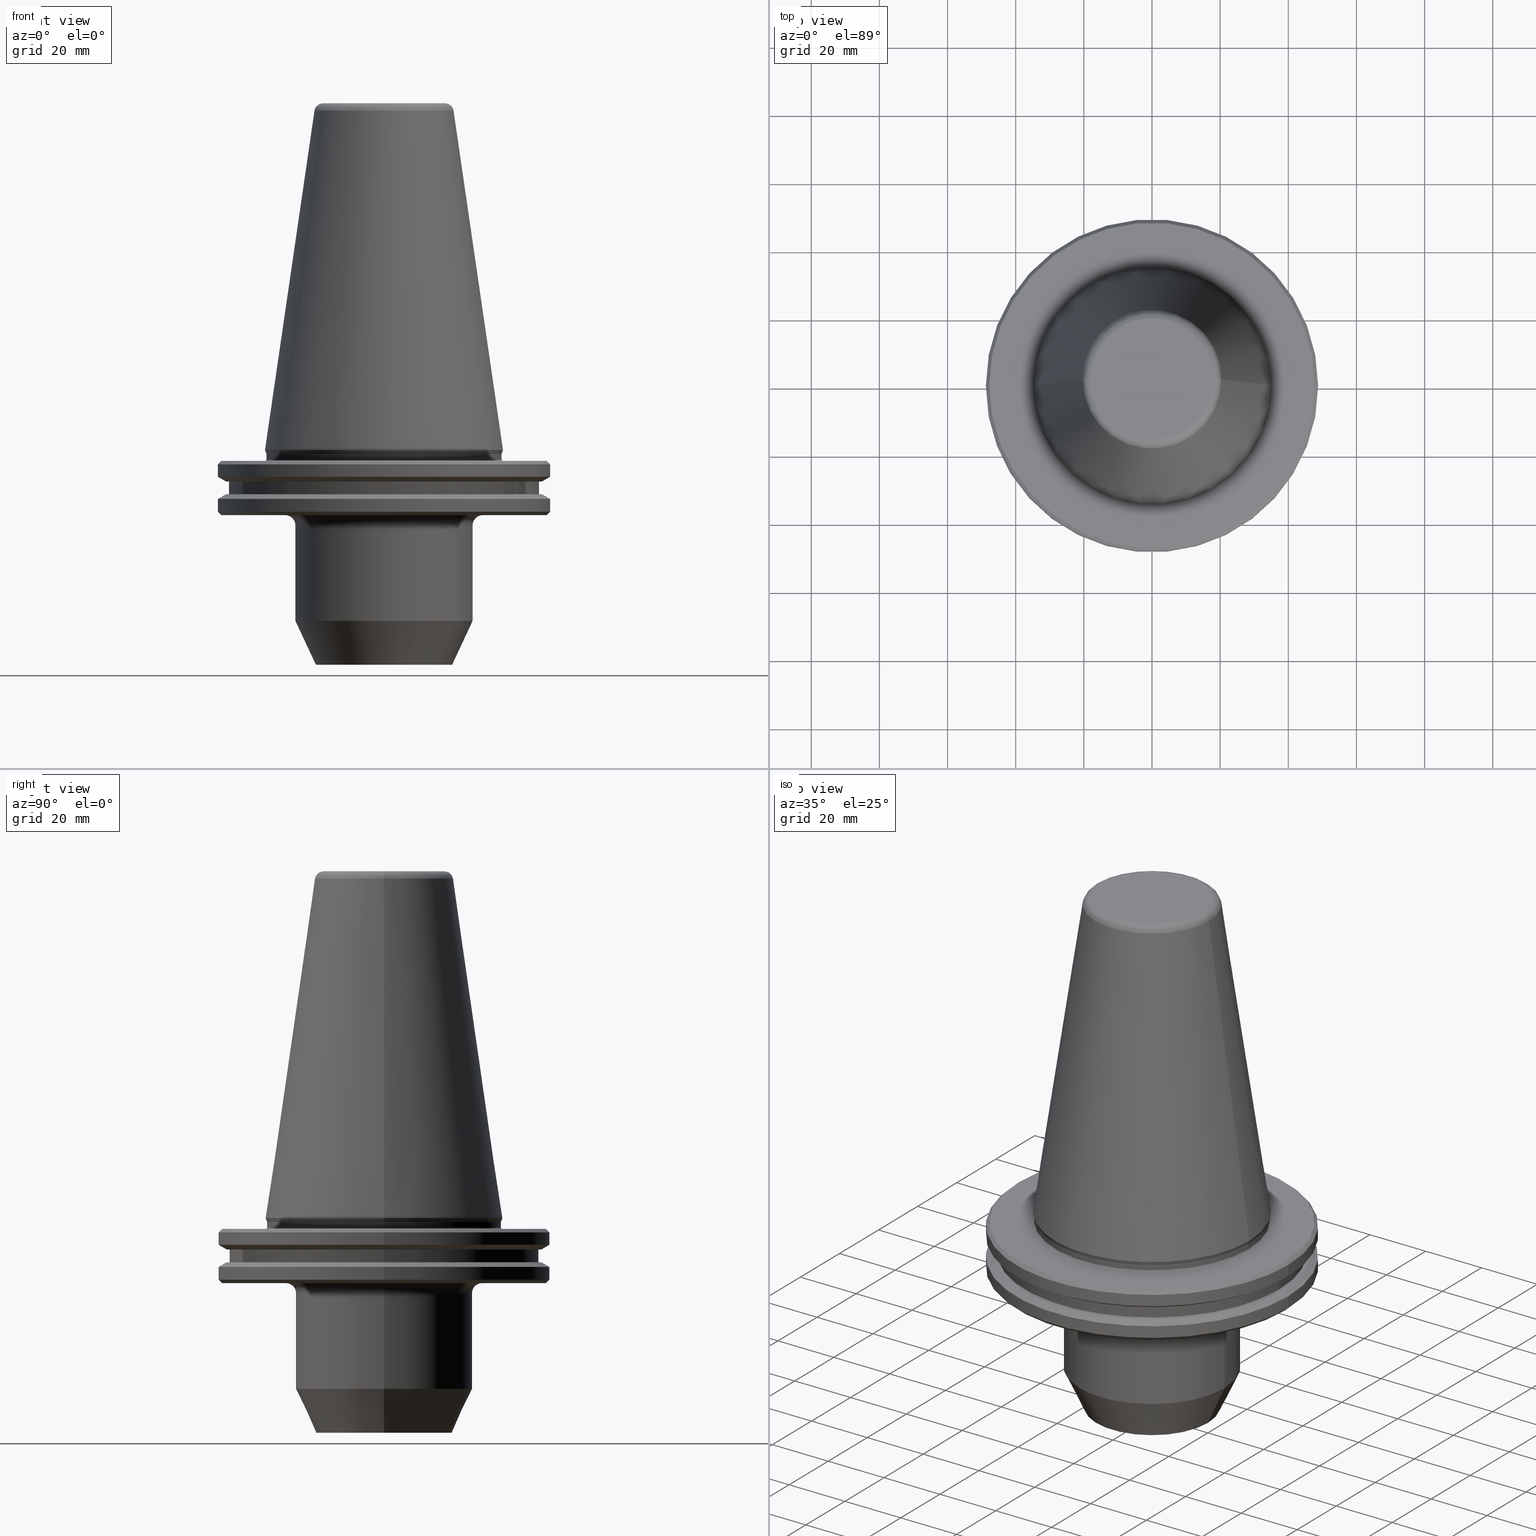
[diagram: canonical four-view strip — front | top / right | iso, engineering-drawing reading convention]
A machine part, canonical four-view strip (front | top / right | iso — engineering-drawing reading convention). The complete STEP part file that produces these views, byte-faithful:
ISO-10303-21;
HEADER;
FILE_DESCRIPTION (( 'STEP AP203' ),
    '1' );
FILE_NAME ('SK50 WE20 063 AD-6.3G15000 SL.STEP',
    '2019-04-30T04:59:08',
    ( '' ),
    ( '' ),
    'SwSTEP 2.0',
    'SolidWorks 2014',
    '' );
FILE_SCHEMA (( 'CONFIG_CONTROL_DESIGN' ));
ENDSEC;

DATA;
#1 = VECTOR ( 'NONE', #384, 1000.000000000000000 ) ;
#2 = ADVANCED_FACE ( 'NONE', ( #417 ), #938, .F. ) ;
#3 = EDGE_LOOP ( 'NONE', ( #146, #950 ) ) ;
#4 = DIRECTION ( 'NONE',  ( -0.0000000000000000000, -0.0000000000000000000, 1.000000000000000000 ) ) ;
#5 = DIRECTION ( 'NONE',  ( 1.000000000000000000, 0.0000000000000000000, 0.0000000000000000000 ) ) ;
#6 = ORIENTED_EDGE ( 'NONE', *, *, #334, .T. ) ;
#7 = CONICAL_SURFACE ( 'NONE', #414, 48.74999999999995700, 0.7853981633974482800 ) ;
#8 = SECURITY_CLASSIFICATION ( '', '', #96 ) ;
#9 = DIRECTION ( 'NONE',  ( 1.000000000000000000, 0.0000000000000000000, 0.0000000000000000000 ) ) ;
#10 = ORIENTED_EDGE ( 'NONE', *, *, #597, .T. ) ;
#11 = FACE_OUTER_BOUND ( 'NONE', #511, .T. ) ;
#12 = EDGE_LOOP ( 'NONE', ( #786, #610 ) ) ;
#13 = DIRECTION ( 'NONE',  ( 1.000000000000000000, 0.0000000000000000000, 0.0000000000000000000 ) ) ;
#14 = ORIENTED_EDGE ( 'NONE', *, *, #482, .T. ) ;
#15 = DIRECTION ( 'NONE',  ( -0.0000000000000000000, -0.0000000000000000000, 1.000000000000000000 ) ) ;
#16 = ORIENTED_EDGE ( 'NONE', *, *, #407, .F. ) ;
#17 = AXIS2_PLACEMENT_3D ( 'NONE', #175, #561, #871 ) ;
#18 = CARTESIAN_POINT ( 'NONE',  ( 0.0000000000000000000, 0.0000000000000000000, -19.09999999999995200 ) ) ;
#19 = CARTESIAN_POINT ( 'NONE',  ( 0.0000000000000000000, 0.0000000000000000000, -9.224999999999926800 ) ) ;
#20 = DIRECTION ( 'NONE',  ( 1.000000000000000000, 0.0000000000000000000, 0.0000000000000000000 ) ) ;
#21 = VECTOR ( 'NONE', #439, 1000.000000000000100 ) ;
#22 = ORIENTED_EDGE ( 'NONE', *, *, #445, .T. ) ;
#23 = LOCAL_TIME ( 10, 29, 7.000000000000000000, #229 ) ;
#24 = DIRECTION ( 'NONE',  ( -0.0000000000000000000, -0.0000000000000000000, 1.000000000000000000 ) ) ;
#25 = ADVANCED_FACE ( 'NONE', ( #799 ), #159, .F. ) ;
#26 = CARTESIAN_POINT ( 'NONE',  ( -28.99999999999999600, 3.551475717527324000E-015, -22.09999999999995200 ) ) ;
#27 = AXIS2_PLACEMENT_3D ( 'NONE', #882, #737, #897 ) ;
#28 = DIRECTION ( 'NONE',  ( 0.1443082234293891500, 1.767266039134425100E-017, -0.9895327870518760800 ) ) ;
#29 = ORIENTED_EDGE ( 'NONE', *, *, #577, .F. ) ;
#30 = ORIENTED_EDGE ( 'NONE', *, *, #502, .F. ) ;
#31 = VECTOR ( 'NONE', #582, 999.9999999999998900 ) ;
#32 = DIRECTION ( 'NONE',  ( 1.000000000000000000, 0.0000000000000000000, 0.0000000000000000000 ) ) ;
#33 = ORIENTED_EDGE ( 'NONE', *, *, #189, .T. ) ;
#34 = EDGE_CURVE ( 'NONE', #436, #942, #210, .T. ) ;
#35 = VECTOR ( 'NONE', #479, 1000.000000000000000 ) ;
#36 = FACE_OUTER_BOUND ( 'NONE', #247, .T. ) ;
#37 = ORIENTED_EDGE ( 'NONE', *, *, #809, .T. ) ;
#38 = VERTEX_POINT ( 'NONE', #89 ) ;
#39 = VERTEX_POINT ( 'NONE', #960 ) ;
#40 = EDGE_LOOP ( 'NONE', ( #967, #996, #380, #751 ) ) ;
#41 = DIRECTION ( 'NONE',  ( 0.0000000000000000000, -1.000000000000000000, 0.0000000000000000000 ) ) ;
#42 = EDGE_CURVE ( 'NONE', #38, #517, #390, .T. ) ;
#43 = AXIS2_PLACEMENT_3D ( 'NONE', #592, #335, #211 ) ;
#44 = CARTESIAN_POINT ( 'NONE',  ( -34.92500000000009700, 0.0000000000000000000, -5.551115123125782700E-014 ) ) ;
#45 = FACE_OUTER_BOUND ( 'NONE', #744, .T. ) ;
#46 = ORIENTED_EDGE ( 'NONE', *, *, #757, .F. ) ;
#47 = CARTESIAN_POINT ( 'NONE',  ( 20.00000000000000000, 0.0000000000000000000, -63.00000000000000000 ) ) ;
#48 = CALENDAR_DATE ( 2019, 30, 4 ) ;
#49 = EDGE_CURVE ( 'NONE', #517, #38, #714, .T. ) ;
#50 = CIRCLE ( 'NONE', #397, 26.00000000000000000 ) ;
#51 = AXIS2_PLACEMENT_3D ( 'NONE', #534, #288, #370 ) ;
#52 = ADVANCED_FACE ( 'NONE', ( #602 ), #483, .T. ) ;
#53 = EDGE_LOOP ( 'NONE', ( #861, #99, #977, #246 ) ) ;
#54 = CARTESIAN_POINT ( 'NONE',  ( 46.37259526419079900, 0.0000000000000000000, -9.224999999999926800 ) ) ;
#55 = ORIENTED_EDGE ( 'NONE', *, *, #717, .T. ) ;
#56 = ADVANCED_FACE ( 'NONE', ( #280 ), #504, .T. ) ;
#57 = DIRECTION ( 'NONE',  ( 1.000000000000000000, 0.0000000000000000000, 0.0000000000000000000 ) ) ;
#58 = FACE_OUTER_BOUND ( 'NONE', #957, .T. ) ;
#59 = CONICAL_SURFACE ( 'NONE', #27, 46.37259526419079900, 1.047197551196604700 ) ;
#60 = AXIS2_PLACEMENT_3D ( 'NONE', #579, #589, #125 ) ;
#61 = CC_DESIGN_PERSON_AND_ORGANIZATION_ASSIGNMENT ( #683, #85, ( #8 ) ) ;
#62 = LINE ( 'NONE', #705, #487 ) ;
#63 = ADVANCED_FACE ( 'NONE', ( #910 ), #667, .T. ) ;
#64 = VERTEX_POINT ( 'NONE', #952 ) ;
#65 = PLANE ( 'NONE',  #980 ) ;
#66 = ORIENTED_EDGE ( 'NONE', *, *, #309, .F. ) ;
#67 = DIRECTION ( 'NONE',  ( -0.0000000000000000000, -0.0000000000000000000, 1.000000000000000000 ) ) ;
#68 = DIRECTION ( 'NONE',  ( -0.0000000000000000000, -0.0000000000000000000, 1.000000000000000000 ) ) ;
#69 = ADVANCED_FACE ( 'NONE', ( #262 ), #240, .T. ) ;
#70 = AXIS2_PLACEMENT_3D ( 'NONE', #572, #255, #20 ) ;
#71 = DIRECTION ( 'NONE',  ( -1.000000000000000000, 0.0000000000000000000, 0.0000000000000000000 ) ) ;
#72 = AXIS2_PLACEMENT_3D ( 'NONE', #410, #948, #404 ) ;
#73 = VERTEX_POINT ( 'NONE', #736 ) ;
#74 = LINE ( 'NONE', #238, #656 ) ;
#75 = ORIENTED_EDGE ( 'NONE', *, *, #859, .T. ) ;
#76 = PERSON_AND_ORGANIZATION ( #375, #376 ) ;
#77 = ADVANCED_FACE ( 'NONE', ( #58 ), #826, .T. ) ;
#78 = CARTESIAN_POINT ( 'NONE',  ( 0.0000000000000000000, 47.74999999999995700, -3.199999999999869600 ) ) ;
#79 = FACE_OUTER_BOUND ( 'NONE', #600, .T. ) ;
#80 = APPLICATION_PROTOCOL_DEFINITION ( 'international standard', 'config_control_design', 1994, #344 ) ;
#81 = AXIS2_PLACEMENT_3D ( 'NONE', #299, #771, #412 ) ;
#82 = CARTESIAN_POINT ( 'NONE',  ( 0.0000000000000000000, 0.0000000000000000000, 101.7500000000000900 ) ) ;
#83 = DIRECTION ( 'NONE',  ( 1.000000000000000000, 0.0000000000000000000, 0.0000000000000000000 ) ) ;
#84 = ADVANCED_FACE ( 'NONE', ( #91 ), #858, .T. ) ;
#85 = PERSON_AND_ORGANIZATION_ROLE ( 'classification_officer' ) ;
#86 = CARTESIAN_POINT ( 'NONE',  ( 0.0000000000000000000, 0.0000000000000000000, -1.167677903268715700 ) ) ;
#87 = AXIS2_PLACEMENT_3D ( 'NONE', #310, #171, #785 ) ;
#88 = ORIENTED_EDGE ( 'NONE', *, *, #717, .F. ) ;
#89 = CARTESIAN_POINT ( 'NONE',  ( 34.49999999999995000, 0.0000000000000000000, -2.700000000000091200 ) ) ;
#90 = ADVANCED_FACE ( 'NONE', ( #688 ), #7, .T. ) ;
#91 = FACE_OUTER_BOUND ( 'NONE', #358, .T. ) ;
#92 = ORIENTED_EDGE ( 'NONE', *, *, #635, .F. ) ;
#93 = CARTESIAN_POINT ( 'NONE',  ( 0.0000000000000000000, 0.0000000000000000000, -12.97500000000006900 ) ) ;
#94 = FACE_OUTER_BOUND ( 'NONE', #218, .T. ) ;
#95 = CARTESIAN_POINT ( 'NONE',  ( 0.0000000000000000000, 0.0000000000000000000, -2.700000000000091200 ) ) ;
#96 = SECURITY_CLASSIFICATION_LEVEL ( 'unclassified' ) ;
#97 = CIRCLE ( 'NONE', #576, 48.75000000000018500 ) ;
#98 = DIRECTION ( 'NONE',  ( 0.0000000000000000000, 0.0000000000000000000, -1.000000000000000000 ) ) ;
#99 = ORIENTED_EDGE ( 'NONE', *, *, #448, .T. ) ;
#100 = ORIENTED_EDGE ( 'NONE', *, *, #876, .T. ) ;
#101 = AXIS2_PLACEMENT_3D ( 'NONE', #840, #702, #468 ) ;
#102 = DIRECTION ( 'NONE',  ( 1.000000000000000000, 0.0000000000000000000, 0.0000000000000000000 ) ) ;
#103 = AXIS2_PLACEMENT_3D ( 'NONE', #953, #992, #193 ) ;
#104 = CIRCLE ( 'NONE', #103, 45.50000000000020600 ) ;
#105 = ORIENTED_EDGE ( 'NONE', *, *, #334, .F. ) ;
#106 = COORDINATED_UNIVERSAL_TIME_OFFSET ( 5, 30, .AHEAD. ) ;
#107 = CARTESIAN_POINT ( 'NONE',  ( -48.74999999999995700, 5.970153145843342400E-015, 101.7499999999999600 ) ) ;
#108 = CYLINDRICAL_SURFACE ( 'NONE', #331, 48.75000000000018500 ) ;
#109 = ORIENTED_EDGE ( 'NONE', *, *, #213, .T. ) ;
#110 = DIRECTION ( 'NONE',  ( -0.0000000000000000000, -0.0000000000000000000, 1.000000000000000000 ) ) ;
#111 = ADVANCED_FACE ( 'NONE', ( #885 ), #612, .T. ) ;
#112 = CARTESIAN_POINT ( 'NONE',  ( 0.0000000000000000000, 0.0000000000000000000, 99.25000000000000000 ) ) ;
#113 = EDGE_CURVE ( 'NONE', #342, #607, #807, .T. ) ;
#114 = CARTESIAN_POINT ( 'NONE',  ( 0.0000000000000000000, 0.0000000000000000000, 99.25000000000000000 ) ) ;
#115 = DIRECTION ( 'NONE',  ( 1.000000000000000000, 0.0000000000000000000, 0.0000000000000000000 ) ) ;
#116 = CIRCLE ( 'NONE', #204, 34.92500000000009700 ) ;
#117 = ADVANCED_FACE ( 'NONE', ( #643, #217 ), #616, .F. ) ;
#118 = VECTOR ( 'NONE', #875, 1000.000000000000000 ) ;
#119 = ORIENTED_EDGE ( 'NONE', *, *, #790, .F. ) ;
#120 = ORIENTED_EDGE ( 'NONE', *, *, #201, .F. ) ;
#121 = ORIENTED_EDGE ( 'NONE', *, *, #445, .F. ) ;
#122 = AXIS2_PLACEMENT_3D ( 'NONE', #944, #622, #408 ) ;
#123 = CC_DESIGN_DATE_AND_TIME_ASSIGNMENT ( #847, #160, ( #8 ) ) ;
#124 = CARTESIAN_POINT ( 'NONE',  ( 34.92500000000009700, 4.277078946022142700E-015, -5.551115123125782700E-014 ) ) ;
#125 = DIRECTION ( 'NONE',  ( 1.000000000000000000, 0.0000000000000000000, 0.0000000000000000000 ) ) ;
#126 = ORIENTED_EDGE ( 'NONE', *, *, #227, .F. ) ;
#127 = TOROIDAL_SURFACE ( 'NONE', #122, 34.99999999999992200, 0.4999999999999726900 ) ;
#128 = ORIENTED_EDGE ( 'NONE', *, *, #833, .F. ) ;
#129 = LOCAL_TIME ( 10, 29, 7.000000000000000000, #328 ) ;
#130 = FACE_OUTER_BOUND ( 'NONE', #735, .T. ) ;
#131 = CARTESIAN_POINT ( 'NONE',  ( 0.0000000000000000000, 0.0000000000000000000, -19.09999999999995200 ) ) ;
#132 = ORIENTED_EDGE ( 'NONE', *, *, #696, .T. ) ;
#133 = AXIS2_PLACEMENT_3D ( 'NONE', #837, #488, #102 ) ;
#134 = CARTESIAN_POINT ( 'NONE',  ( 48.74999999999995700, 0.0000000000000000000, -4.199999999999870500 ) ) ;
#135 = DIRECTION ( 'NONE',  ( 1.224646799147353200E-016, 1.000000000000000000, 0.0000000000000000000 ) ) ;
#136 = AXIS2_PLACEMENT_3D ( 'NONE', #307, #853, #392 ) ;
#137 = CIRCLE ( 'NONE', #762, 2.500000000000082200 ) ;
#138 = ORIENTED_EDGE ( 'NONE', *, *, #213, .F. ) ;
#139 = VERTEX_POINT ( 'NONE', #190 ) ;
#140 = AXIS2_PLACEMENT_3D ( 'NONE', #959, #880, #886 ) ;
#141 = CARTESIAN_POINT ( 'NONE',  ( 0.0000000000000000000, 0.0000000000000000000, 99.61077055857353500 ) ) ;
#142 = ORIENTED_EDGE ( 'NONE', *, *, #113, .T. ) ;
#143 = LINE ( 'NONE', #145, #990 ) ;
#144 = CARTESIAN_POINT ( 'NONE',  ( 0.0000000000000000000, 0.0000000000000000000, -4.199999999999870500 ) ) ;
#145 = CARTESIAN_POINT ( 'NONE',  ( 47.74999999999973700, 0.0000000000000000000, -19.09999999999995200 ) ) ;
#146 = ORIENTED_EDGE ( 'NONE', *, *, #833, .T. ) ;
#147 = DIRECTION ( 'NONE',  ( -0.8660254037844421500, 1.060575238724911200E-016, 0.4999999999999939500 ) ) ;
#148 = AXIS2_PLACEMENT_3D ( 'NONE', #112, #423, #578 ) ;
#149 = EDGE_CURVE ( 'NONE', #874, #917, #451, .T. ) ;
#150 = CALENDAR_DATE ( 2019, 30, 4 ) ;
#151 = DIRECTION ( 'NONE',  ( 1.000000000000000000, 0.0000000000000000000, 0.0000000000000000000 ) ) ;
#152 = AXIS2_PLACEMENT_3D ( 'NONE', #968, #802, #270 ) ;
#153 = FACE_OUTER_BOUND ( 'NONE', #923, .T. ) ;
#154 = DIRECTION ( 'NONE',  ( 0.0000000000000000000, 0.0000000000000000000, -1.000000000000000000 ) ) ;
#155 = DIRECTION ( 'NONE',  ( -0.0000000000000000000, -0.0000000000000000000, 1.000000000000000000 ) ) ;
#156 = ORIENTED_EDGE ( 'NONE', *, *, #424, .F. ) ;
#157 = DIRECTION ( 'NONE',  ( -0.0000000000000000000, -0.0000000000000000000, 1.000000000000000000 ) ) ;
#158 = PERSON_AND_ORGANIZATION_ROLE ( 'creator' ) ;
#159 = PLANE ( 'NONE',  #369 ) ;
#160 = DATE_TIME_ROLE ( 'classification_date' ) ;
#161 = EDGE_CURVE ( 'NONE', #937, #352, #429, .T. ) ;
#162 = VECTOR ( 'NONE', #321, 1000.000000000000000 ) ;
#163 = ORIENTED_EDGE ( 'NONE', *, *, #689, .F. ) ;
#164 = CARTESIAN_POINT ( 'NONE',  ( -48.75000000000018500, 5.970153145843369200E-015, 101.7499999999999600 ) ) ;
#165 = VERTEX_POINT ( 'NONE', #963 ) ;
#166 = ORIENTED_EDGE ( 'NONE', *, *, #697, .F. ) ;
#167 = CARTESIAN_POINT ( 'NONE',  ( 0.0000000000000000000, 0.0000000000000000000, -5.551115123125782700E-014 ) ) ;
#168 = DIRECTION ( 'NONE',  ( -0.0000000000000000000, -0.0000000000000000000, 1.000000000000000000 ) ) ;
#169 = DIRECTION ( 'NONE',  ( 0.8660254037844421500, 0.0000000000000000000, 0.4999999999999939500 ) ) ;
#170 = APPROVAL ( #634, 'UNSPECIFIED' ) ;
#171 = DIRECTION ( 'NONE',  ( -0.0000000000000000000, -0.0000000000000000000, 1.000000000000000000 ) ) ;
#172 = ORIENTED_EDGE ( 'NONE', *, *, #921, .F. ) ;
#173 = CARTESIAN_POINT ( 'NONE',  ( 34.49999999999975100, 0.0000000000000000000, -1.167677903268715700 ) ) ;
#174 = VECTOR ( 'NONE', #366, 1000.000000000000000 ) ;
#175 = CARTESIAN_POINT ( 'NONE',  ( 0.0000000000000000000, 0.0000000000000000000, -22.09999999999995200 ) ) ;
#176 = ORIENTED_EDGE ( 'NONE', *, *, #697, .T. ) ;
#177 = PERSON_AND_ORGANIZATION ( #375, #376 ) ;
#178 = CARTESIAN_POINT ( 'NONE',  ( 48.75000000000018500, 5.970153145843369200E-015, -14.34759526419204800 ) ) ;
#179 = DIRECTION ( 'NONE',  ( 1.000000000000000000, 0.0000000000000000000, 0.0000000000000000000 ) ) ;
#180 = VECTOR ( 'NONE', #68, 1000.000000000000000 ) ;
#181 = ORIENTED_EDGE ( 'NONE', *, *, #482, .F. ) ;
#182 = DIRECTION ( 'NONE',  ( 1.000000000000000000, 0.0000000000000000000, 0.0000000000000000000 ) ) ;
#183 = ORIENTED_EDGE ( 'NONE', *, *, #520, .T. ) ;
#184 = DIRECTION ( 'NONE',  ( -0.0000000000000000000, -0.0000000000000000000, 1.000000000000000000 ) ) ;
#185 = EDGE_CURVE ( 'NONE', #874, #806, #195, .T. ) ;
#186 = FACE_OUTER_BOUND ( 'NONE', #810, .T. ) ;
#187 = CARTESIAN_POINT ( 'NONE',  ( 0.0000000000000000000, 0.0000000000000000000, -1.167677903268715700 ) ) ;
#188 = CYLINDRICAL_SURFACE ( 'NONE', #681, 48.74999999999995700 ) ;
#189 = EDGE_CURVE ( 'NONE', #199, #673, #403, .T. ) ;
#190 = CARTESIAN_POINT ( 'NONE',  ( 46.37259526419124000, 5.824579090844060500E-015, -12.97500000000006900 ) ) ;
#191 =( GEOMETRIC_REPRESENTATION_CONTEXT ( 3 ) GLOBAL_UNCERTAINTY_ASSIGNED_CONTEXT ( ( #364 ) ) GLOBAL_UNIT_ASSIGNED_CONTEXT ( ( #638, #551, #433 ) ) REPRESENTATION_CONTEXT ( 'NONE', 'WORKASPACE' ) );
#192 = ORIENTED_EDGE ( 'NONE', *, *, #407, .T. ) ;
#193 = DIRECTION ( 'NONE',  ( 1.000000000000000000, 0.0000000000000000000, 0.0000000000000000000 ) ) ;
#194 = EDGE_LOOP ( 'NONE', ( #426, #215, #480, #883 ) ) ;
#195 = CIRCLE ( 'NONE', #329, 34.49999999999975100 ) ;
#196 = AXIS2_PLACEMENT_3D ( 'NONE', #918, #991, #232 ) ;
#197 = ORIENTED_EDGE ( 'NONE', *, *, #707, .T. ) ;
#198 = CIRCLE ( 'NONE', #677, 48.74999999999995700 ) ;
#199 = VERTEX_POINT ( 'NONE', #259 ) ;
#200 = CARTESIAN_POINT ( 'NONE',  ( 0.0000000000000000000, 0.0000000000000000000, 101.7499999999999600 ) ) ;
#201 = EDGE_CURVE ( 'NONE', #998, #315, #371, .T. ) ;
#202 = ORIENTED_EDGE ( 'NONE', *, *, #825, .T. ) ;
#203 = CARTESIAN_POINT ( 'NONE',  ( -45.50000000000020600, 5.572142936120482400E-015, -12.97500000000006900 ) ) ;
#204 = AXIS2_PLACEMENT_3D ( 'NONE', #559, #856, #9 ) ;
#205 = DIRECTION ( 'NONE',  ( 1.000000000000000000, 0.0000000000000000000, 0.0000000000000000000 ) ) ;
#206 = CIRCLE ( 'NONE', #604, 28.99999999999999600 ) ;
#207 = CARTESIAN_POINT ( 'NONE',  ( 0.0000000000000000000, 0.0000000000000000000, 101.7499999999999600 ) ) ;
#208 = ORIENTED_EDGE ( 'NONE', *, *, #228, .T. ) ;
#209 = EDGE_CURVE ( 'NONE', #673, #199, #788, .T. ) ;
#210 = LINE ( 'NONE', #164, #1 ) ;
#211 = DIRECTION ( 'NONE',  ( 1.000000000000000000, 0.0000000000000000000, 0.0000000000000000000 ) ) ;
#212 = CARTESIAN_POINT ( 'NONE',  ( -17.92446055806129500, 2.195113324887274600E-015, 99.25000000000000000 ) ) ;
#213 = EDGE_CURVE ( 'NONE', #382, #816, #973, .T. ) ;
#214 = CARTESIAN_POINT ( 'NONE',  ( 0.0000000000000000000, 0.0000000000000000000, -12.97500000000006900 ) ) ;
#215 = ORIENTED_EDGE ( 'NONE', *, *, #42, .F. ) ;
#216 = CARTESIAN_POINT ( 'NONE',  ( 0.0000000000000000000, 0.0000000000000000000, 101.7499999999999600 ) ) ;
#217 = FACE_BOUND ( 'NONE', #365, .T. ) ;
#218 = EDGE_LOOP ( 'NONE', ( #458, #37, #92, #828 ) ) ;
#219 = CC_DESIGN_APPROVAL ( #170, ( #8 ) ) ;
#220 = TOROIDAL_SURFACE ( 'NONE', #17, 28.99999999999999600, 3.000000000000000000 ) ;
#221 = ADVANCED_FACE ( 'NONE', ( #588 ), #746, .T. ) ;
#222 = EDGE_LOOP ( 'NONE', ( #704, #658, #845, #253 ) ) ;
#223 = ORIENTED_EDGE ( 'NONE', *, *, #584, .F. ) ;
#224 = ADVANCED_FACE ( 'NONE', ( #563 ), #765, .F. ) ;
#225 = FACE_BOUND ( 'NONE', #3, .T. ) ;
#226 = ORIENTED_EDGE ( 'NONE', *, *, #258, .F. ) ;
#227 = EDGE_CURVE ( 'NONE', #287, #998, #143, .T. ) ;
#228 = EDGE_CURVE ( 'NONE', #287, #73, #946, .T. ) ;
#229 = COORDINATED_UNIVERSAL_TIME_OFFSET ( 5, 30, .AHEAD. ) ;
#230 = ADVANCED_FACE ( 'NONE', ( #350 ), #295, .T. ) ;
#231 = DATE_TIME_ROLE ( 'creation_date' ) ;
#232 = DIRECTION ( 'NONE',  ( 1.000000000000000000, 0.0000000000000000000, 0.0000000000000000000 ) ) ;
#233 = DIRECTION ( 'NONE',  ( -0.0000000000000000000, -0.0000000000000000000, 1.000000000000000000 ) ) ;
#234 = DIRECTION ( 'NONE',  ( -0.0000000000000000000, -0.0000000000000000000, 1.000000000000000000 ) ) ;
#235 = ORIENTED_EDGE ( 'NONE', *, *, #357, .T. ) ;
#236 = CARTESIAN_POINT ( 'NONE',  ( 28.99999999999999600, 0.0000000000000000000, -19.09999999999995200 ) ) ;
#237 = CARTESIAN_POINT ( 'NONE',  ( 48.75000000000018500, 0.0000000000000000000, -18.09999999999950400 ) ) ;
#238 = CARTESIAN_POINT ( 'NONE',  ( -45.50000000000020600, 5.572142936120482400E-015, 101.7499999999999600 ) ) ;
#239 = EDGE_LOOP ( 'NONE', ( #523, #109, #595, #156 ) ) ;
#240 = CONICAL_SURFACE ( 'NONE', #140, 20.00000000000000000, 0.4363323129985833800 ) ;
#241 = ORIENTED_EDGE ( 'NONE', *, *, #707, .F. ) ;
#242 = DIRECTION ( 'NONE',  ( -0.0000000000000000000, -0.0000000000000000000, 1.000000000000000000 ) ) ;
#243 = DIRECTION ( 'NONE',  ( -1.000000000000000000, 0.0000000000000000000, 0.0000000000000000000 ) ) ;
#244 = CIRCLE ( 'NONE', #587, 48.75000000000018500 ) ;
#245 = CARTESIAN_POINT ( 'NONE',  ( -45.50000000000020600, 5.572142936120482400E-015, -9.224999999999926800 ) ) ;
#246 = ORIENTED_EDGE ( 'NONE', *, *, #988, .F. ) ;
#247 = EDGE_LOOP ( 'NONE', ( #914, #100 ) ) ;
#248 = CARTESIAN_POINT ( 'NONE',  ( 0.0000000000000000000, 0.0000000000000000000, -19.09999999999995200 ) ) ;
#249 = EDGE_LOOP ( 'NONE', ( #29, #745, #652, #759 ) ) ;
#250 = DIRECTION ( 'NONE',  ( 0.7071067811865474600, 0.0000000000000000000, 0.7071067811865475700 ) ) ;
#251 = CIRCLE ( 'NONE', #804, 2.999999999999999100 ) ;
#252 = PERSON_AND_ORGANIZATION_ROLE ( 'design_supplier' ) ;
#253 = ORIENTED_EDGE ( 'NONE', *, *, #289, .F. ) ;
#254 = LOCAL_TIME ( 10, 29, 7.000000000000000000, #475 ) ;
#255 = DIRECTION ( 'NONE',  ( -0.0000000000000000000, -0.0000000000000000000, 1.000000000000000000 ) ) ;
#256 = CONICAL_SURFACE ( 'NONE', #349, 34.49999999999975100, 0.3490658503990017300 ) ;
#257 = DIRECTION ( 'NONE',  ( 0.8660254037844393700, 1.060575238724907800E-016, -0.4999999999999985000 ) ) ;
#258 = EDGE_CURVE ( 'NONE', #39, #332, #728, .T. ) ;
#259 = CARTESIAN_POINT ( 'NONE',  ( -20.39829252569114000, 0.0000000000000000000, 99.61077055857353500 ) ) ;
#260 = EDGE_LOOP ( 'NONE', ( #687, #279, #590, #88 ) ) ;
#261 = ORIENTED_EDGE ( 'NONE', *, *, #985, .F. ) ;
#262 = FACE_OUTER_BOUND ( 'NONE', #249, .T. ) ;
#263 = CIRCLE ( 'NONE', #136, 0.4999999999999726900 ) ;
#264 = CIRCLE ( 'NONE', #431, 17.92446055806129500 ) ;
#265 = CARTESIAN_POINT ( 'NONE',  ( -46.37259526419124000, 0.0000000000000000000, -12.97500000000006900 ) ) ;
#266 = ORIENTED_EDGE ( 'NONE', *, *, #876, .F. ) ;
#267 = ORIENTED_EDGE ( 'NONE', *, *, #650, .F. ) ;
#268 = CC_DESIGN_SECURITY_CLASSIFICATION ( #8, ( #763 ) ) ;
#269 = CARTESIAN_POINT ( 'NONE',  ( 0.0000000000000000000, 0.0000000000000000000, 101.7500000000000900 ) ) ;
#270 = DIRECTION ( 'NONE',  ( 1.000000000000000000, 0.0000000000000000000, 0.0000000000000000000 ) ) ;
#271 = CARTESIAN_POINT ( 'NONE',  ( 0.0000000000000000000, 47.74999999999973700, -19.09999999999995200 ) ) ;
#272 = AXIS2_PLACEMENT_3D ( 'NONE', #187, #574, #336 ) ;
#273 = LINE ( 'NONE', #346, #873 ) ;
#274 = ORIENTED_EDGE ( 'NONE', *, *, #185, .F. ) ;
#275 = DIRECTION ( 'NONE',  ( 1.000000000000000000, 0.0000000000000000000, 0.0000000000000000000 ) ) ;
#276 = APPROVAL_DATE_TIME ( #498, #805 ) ;
#277 = CONICAL_SURFACE ( 'NONE', #196, 47.74999999999973700, 0.7853981633974482800 ) ;
#278 = CARTESIAN_POINT ( 'NONE',  ( 0.0000000000000000000, 0.0000000000000000000, -3.199999999999869600 ) ) ;
#279 = ORIENTED_EDGE ( 'NONE', *, *, #49, .T. ) ;
#280 = FACE_OUTER_BOUND ( 'NONE', #994, .T. ) ;
#281 = ORIENTED_EDGE ( 'NONE', *, *, #577, .T. ) ;
#282 = CIRCLE ( 'NONE', #983, 17.92446055806129500 ) ;
#283 = DIRECTION ( 'NONE',  ( -0.0000000000000000000, -0.0000000000000000000, 1.000000000000000000 ) ) ;
#284 = CIRCLE ( 'NONE', #949, 46.37259526419079900 ) ;
#285 = PLANE ( 'NONE',  #493 ) ;
#286 = ORIENTED_EDGE ( 'NONE', *, *, #309, .T. ) ;
#287 = VERTEX_POINT ( 'NONE', #494 ) ;
#288 = DIRECTION ( 'NONE',  ( -0.0000000000000000000, -0.0000000000000000000, 1.000000000000000000 ) ) ;
#289 = EDGE_CURVE ( 'NONE', #38, #348, #922, .T. ) ;
#290 = CARTESIAN_POINT ( 'NONE',  ( 45.50000000000020600, 0.0000000000000000000, 101.7499999999999600 ) ) ;
#291 = ADVANCED_FACE ( 'NONE', ( #515 ), #127, .F. ) ;
#292 = CARTESIAN_POINT ( 'NONE',  ( 34.49999999999975100, 0.0000000000000000000, -1.167677903268715700 ) ) ;
#293 = CARTESIAN_POINT ( 'NONE',  ( 0.0000000000000000000, 46.37259526419079900, -9.224999999999926800 ) ) ;
#294 = DIRECTION ( 'NONE',  ( -0.0000000000000000000, -0.0000000000000000000, 1.000000000000000000 ) ) ;
#295 = CONICAL_SURFACE ( 'NONE', #469, 46.37259526419079900, 1.047197551196604700 ) ;
#296 = DIRECTION ( 'NONE',  ( -0.0000000000000000000, -0.0000000000000000000, 1.000000000000000000 ) ) ;
#297 = ORIENTED_EDGE ( 'NONE', *, *, #625, .T. ) ;
#298 = APPROVAL_PERSON_ORGANIZATION ( #521, #805, #629 ) ;
#299 = CARTESIAN_POINT ( 'NONE',  ( 0.0000000000000000000, 0.0000000000000000000, -5.551115123125782700E-014 ) ) ;
#300 = DIRECTION ( 'NONE',  ( -1.000000000000000000, 0.0000000000000000000, -0.0000000000000000000 ) ) ;
#301 = CIRCLE ( 'NONE', #101, 46.37259526419124000 ) ;
#302 = DIRECTION ( 'NONE',  ( -0.7071067811865474600, 0.0000000000000000000, -0.7071067811865475700 ) ) ;
#303 = EDGE_LOOP ( 'NONE', ( #965, #281, #651, #571 ) ) ;
#304 = DESIGN_CONTEXT ( 'detailed design', #821, 'design' ) ;
#305 = APPROVAL_ROLE ( '' ) ;
#306 = CARTESIAN_POINT ( 'NONE',  ( -34.92500000000009700, 4.277078946022142700E-015, -5.551115123125782700E-014 ) ) ;
#307 = CARTESIAN_POINT ( 'NONE',  ( -34.99999999999992200, 4.286263797015727000E-015, -2.700000000000091200 ) ) ;
#308 = DIRECTION ( 'NONE',  ( -0.0000000000000000000, -0.0000000000000000000, 1.000000000000000000 ) ) ;
#309 = EDGE_CURVE ( 'NONE', #139, #315, #539, .T. ) ;
#310 = CARTESIAN_POINT ( 'NONE',  ( 0.0000000000000000000, 0.0000000000000000000, 101.7499999999999600 ) ) ;
#311 = DIRECTION ( 'NONE',  ( 1.000000000000000000, 0.0000000000000000000, 0.0000000000000000000 ) ) ;
#312 = DIRECTION ( 'NONE',  ( 0.0000000000000000000, -0.0000000000000000000, 1.000000000000000000 ) ) ;
#313 = LINE ( 'NONE', #633, #509 ) ;
#314 = DIRECTION ( 'NONE',  ( 0.0000000000000000000, 0.0000000000000000000, -1.000000000000000000 ) ) ;
#315 = VERTEX_POINT ( 'NONE', #626 ) ;
#316 = DIRECTION ( 'NONE',  ( 1.000000000000000000, 0.0000000000000000000, 0.0000000000000000000 ) ) ;
#317 = AXIS2_PLACEMENT_3D ( 'NONE', #293, #427, #115 ) ;
#318 = DIRECTION ( 'NONE',  ( -0.0000000000000000000, -0.0000000000000000000, 1.000000000000000000 ) ) ;
#319 = PRODUCT_RELATED_PRODUCT_CATEGORY ( 'detail', '', ( #446 ) ) ;
#320 = DIRECTION ( 'NONE',  ( 0.0000000000000000000, 0.0000000000000000000, -1.000000000000000000 ) ) ;
#321 = DIRECTION ( 'NONE',  ( 0.7071067811865474600, 8.659560562354931600E-017, -0.7071067811865475700 ) ) ;
#322 = ORIENTED_EDGE ( 'NONE', *, *, #933, .T. ) ;
#323 = DIRECTION ( 'NONE',  ( 1.000000000000000000, 0.0000000000000000000, 0.0000000000000000000 ) ) ;
#324 = CIRCLE ( 'NONE', #60, 26.00000000000000000 ) ;
#325 = DIRECTION ( 'NONE',  ( -1.000000000000000000, 1.224646799147352000E-016, 0.0000000000000000000 ) ) ;
#326 = EDGE_LOOP ( 'NONE', ( #617, #741, #163, #120 ) ) ;
#327 = PLANE ( 'NONE',  #801 ) ;
#328 = COORDINATED_UNIVERSAL_TIME_OFFSET ( 5, 30, .AHEAD. ) ;
#329 = AXIS2_PLACEMENT_3D ( 'NONE', #838, #184, #179 ) ;
#330 = LINE ( 'NONE', #844, #878 ) ;
#331 = AXIS2_PLACEMENT_3D ( 'NONE', #987, #611, #452 ) ;
#332 = VERTEX_POINT ( 'NONE', #568 ) ;
#333 = DIRECTION ( 'NONE',  ( -0.0000000000000000000, -0.0000000000000000000, 1.000000000000000000 ) ) ;
#334 = EDGE_CURVE ( 'NONE', #662, #372, #703, .T. ) ;
#335 = DIRECTION ( 'NONE',  ( -0.0000000000000000000, -0.0000000000000000000, 1.000000000000000000 ) ) ;
#336 = DIRECTION ( 'NONE',  ( 1.000000000000000000, 0.0000000000000000000, 0.0000000000000000000 ) ) ;
#337 = DIRECTION ( 'NONE',  ( 1.000000000000000000, 0.0000000000000000000, 0.0000000000000000000 ) ) ;
#338 = AXIS2_PLACEMENT_3D ( 'NONE', #956, #456, #13 ) ;
#339 = AXIS2_PLACEMENT_3D ( 'NONE', #895, #437, #865 ) ;
#340 = LINE ( 'NONE', #107, #118 ) ;
#341 = ORIENTED_EDGE ( 'NONE', *, *, #389, .T. ) ;
#342 = VERTEX_POINT ( 'NONE', #367 ) ;
#343 = ORIENTED_EDGE ( 'NONE', *, *, #985, .T. ) ;
#344 = APPLICATION_CONTEXT ( 'configuration controlled 3d designs of mechanical parts and assemblies' ) ;
#345 = ORIENTED_EDGE ( 'NONE', *, *, #773, .F. ) ;
#346 = CARTESIAN_POINT ( 'NONE',  ( -47.74999999999973700, 5.847688465928579700E-015, -19.09999999999995200 ) ) ;
#347 = EDGE_CURVE ( 'NONE', #395, #955, #104, .T. ) ;
#348 = VERTEX_POINT ( 'NONE', #653 ) ;
#349 = AXIS2_PLACEMENT_3D ( 'NONE', #769, #465, #151 ) ;
#350 = FACE_OUTER_BOUND ( 'NONE', #239, .T. ) ;
#351 = DIRECTION ( 'NONE',  ( -0.0000000000000000000, -0.0000000000000000000, 1.000000000000000000 ) ) ;
#352 = VERTEX_POINT ( 'NONE', #245 ) ;
#353 = LOCAL_TIME ( 10, 29, 7.000000000000000000, #565 ) ;
#354 = FACE_OUTER_BOUND ( 'NONE', #326, .T. ) ;
#355 = DIRECTION ( 'NONE',  ( 0.0000000000000000000, -0.0000000000000000000, 1.000000000000000000 ) ) ;
#356 = ORIENTED_EDGE ( 'NONE', *, *, #689, .T. ) ;
#357 = EDGE_CURVE ( 'NONE', #917, #724, #495, .T. ) ;
#358 = EDGE_LOOP ( 'NONE', ( #413, #33, #176, #241 ) ) ;
#359 = CARTESIAN_POINT ( 'NONE',  ( 0.0000000000000000000, 0.0000000000000000000, 101.7499999999999600 ) ) ;
#360 = CARTESIAN_POINT ( 'NONE',  ( -20.00000000000000000, 2.816687638038912400E-015, -63.00000000000000000 ) ) ;
#361 = EDGE_CURVE ( 'NONE', #73, #436, #273, .T. ) ;
#362 = FACE_OUTER_BOUND ( 'NONE', #966, .T. ) ;
#363 = VECTOR ( 'NONE', #666, 1000.000000000000000 ) ;
#364 = UNCERTAINTY_MEASURE_WITH_UNIT (LENGTH_MEASURE( 1.000000000000000100E-005 ), #638, 'distance_accuracy_value', 'NONE');
#365 = EDGE_LOOP ( 'NONE', ( #936, #929 ) ) ;
#366 = DIRECTION ( 'NONE',  ( -0.0000000000000000000, -0.0000000000000000000, 1.000000000000000000 ) ) ;
#367 = CARTESIAN_POINT ( 'NONE',  ( -48.74999999999995700, 5.970153145843342400E-015, -4.199999999999870500 ) ) ;
#368 = ORIENTED_EDGE ( 'NONE', *, *, #889, .T. ) ;
#369 = AXIS2_PLACEMENT_3D ( 'NONE', #851, #320, #716 ) ;
#370 = DIRECTION ( 'NONE',  ( 1.000000000000000000, 0.0000000000000000000, 0.0000000000000000000 ) ) ;
#371 = LINE ( 'NONE', #503, #174 ) ;
#372 = VERTEX_POINT ( 'NONE', #892 ) ;
#373 = CARTESIAN_POINT ( 'NONE',  ( 0.0000000000000000000, 0.0000000000000000000, -4.199999999999870500 ) ) ;
#374 = DIRECTION ( 'NONE',  ( -0.0000000000000000000, -0.0000000000000000000, 1.000000000000000000 ) ) ;
#375 = PERSON ( 'UNSPECIFIED', 'UNSPECIFIED', 'UNSPECIFIED', ('UNSPECIFIED'), ('UNSPECIFIED'), ('UNSPECIFIED') ) ;
#376 = ORGANIZATION ( 'UNSPECIFIED', 'UNSPECIFIED', '' ) ;
#377 = CONICAL_SURFACE ( 'NONE', #664, 34.92500000000009700, 0.1448138426689039600 ) ;
#378 = DIRECTION ( 'NONE',  ( 1.000000000000000000, 0.0000000000000000000, 0.0000000000000000000 ) ) ;
#379 = CARTESIAN_POINT ( 'NONE',  ( 0.0000000000000000000, 46.37259526419124000, -12.97500000000006900 ) ) ;
#380 = ORIENTED_EDGE ( 'NONE', *, *, #824, .F. ) ;
#381 = AXIS2_PLACEMENT_3D ( 'NONE', #621, #770, #961 ) ;
#382 = VERTEX_POINT ( 'NONE', #432 ) ;
#383 = AXIS2_PLACEMENT_3D ( 'NONE', #543, #385, #71 ) ;
#384 = DIRECTION ( 'NONE',  ( -0.0000000000000000000, -0.0000000000000000000, 1.000000000000000000 ) ) ;
#385 = DIRECTION ( 'NONE',  ( 0.0000000000000000000, 0.0000000000000000000, -1.000000000000000000 ) ) ;
#386 = ORIENTED_EDGE ( 'NONE', *, *, #258, .T. ) ;
#387 = VECTOR ( 'NONE', #708, 1000.000000000000000 ) ;
#388 = DIRECTION ( 'NONE',  ( -0.0000000000000000000, -0.0000000000000000000, 1.000000000000000000 ) ) ;
#389 = EDGE_CURVE ( 'NONE', #562, #332, #324, .T. ) ;
#390 = CIRCLE ( 'NONE', #406, 34.49999999999995000 ) ;
#391 = CIRCLE ( 'NONE', #774, 34.99999999999992200 ) ;
#392 = DIRECTION ( 'NONE',  ( -1.000000000000000000, 1.224646799147355700E-016, 0.0000000000000000000 ) ) ;
#393 = AXIS2_PLACEMENT_3D ( 'NONE', #670, #939, #311 ) ;
#394 = CARTESIAN_POINT ( 'NONE',  ( -46.37259526419079900, 5.679005035844697300E-015, -9.224999999999926800 ) ) ;
#395 = VERTEX_POINT ( 'NONE', #972 ) ;
#396 = AXIS2_PLACEMENT_3D ( 'NONE', #715, #964, #505 ) ;
#397 = AXIS2_PLACEMENT_3D ( 'NONE', #400, #863, #316 ) ;
#398 = DIRECTION ( 'NONE',  ( -0.0000000000000000000, -0.0000000000000000000, 1.000000000000000000 ) ) ;
#399 = DIRECTION ( 'NONE',  ( 1.000000000000000000, 0.0000000000000000000, 0.0000000000000000000 ) ) ;
#400 = CARTESIAN_POINT ( 'NONE',  ( 0.0000000000000000000, 0.0000000000000000000, -22.09999999999995200 ) ) ;
#401 = ORIENTED_EDGE ( 'NONE', *, *, #696, .F. ) ;
#402 = DIRECTION ( 'NONE',  ( 1.000000000000000000, 0.0000000000000000000, 0.0000000000000000000 ) ) ;
#403 = CIRCLE ( 'NONE', #70, 20.39829252569114000 ) ;
#404 = DIRECTION ( 'NONE',  ( 1.000000000000000000, 0.0000000000000000000, 0.0000000000000000000 ) ) ;
#405 = VERTEX_POINT ( 'NONE', #265 ) ;
#406 = AXIS2_PLACEMENT_3D ( 'NONE', #472, #168, #485 ) ;
#407 = EDGE_CURVE ( 'NONE', #372, #662, #470, .T. ) ;
#408 = DIRECTION ( 'NONE',  ( 1.000000000000000000, 0.0000000000000000000, 0.0000000000000000000 ) ) ;
#409 = VECTOR ( 'NONE', #169, 1000.000000000000000 ) ;
#410 = CARTESIAN_POINT ( 'NONE',  ( 0.0000000000000000000, 0.0000000000000000000, 101.7499999999999600 ) ) ;
#411 = ORIENTED_EDGE ( 'NONE', *, *, #201, .T. ) ;
#412 = DIRECTION ( 'NONE',  ( 1.000000000000000000, 0.0000000000000000000, 0.0000000000000000000 ) ) ;
#413 = ORIENTED_EDGE ( 'NONE', *, *, #625, .F. ) ;
#414 = AXIS2_PLACEMENT_3D ( 'NONE', #144, #800, #738 ) ;
#415 = PERSON_AND_ORGANIZATION_ROLE ( 'creator' ) ;
#416 = FACE_OUTER_BOUND ( 'NONE', #463, .T. ) ;
#417 = FACE_OUTER_BOUND ( 'NONE', #194, .T. ) ;
#418 = AXIS2_PLACEMENT_3D ( 'NONE', #872, #727, #647 ) ;
#419 = APPROVAL_DATE_TIME ( #631, #170 ) ;
#420 = DIRECTION ( 'NONE',  ( -0.0000000000000000000, -0.0000000000000000000, 1.000000000000000000 ) ) ;
#421 = ADVANCED_BREP_SHAPE_REPRESENTATION ( 'SK50 WE20 063 AD-6.3G15000 SL', ( #618, #396 ), #191 ) ;
#422 = CLOSED_SHELL ( 'NONE', ( #224, #221, #609, #56, #803, #77, #550, #291, #90, #533, #913, #464, #884, #841, #52, #471, #25, #854, #849, #63, #755, #909, #117, #230, #526, #111, #694, #2, #581, #879, #905, #84, #827, #69, #455, #834 ) ) ;
#423 = DIRECTION ( 'NONE',  ( -0.0000000000000000000, -0.0000000000000000000, 1.000000000000000000 ) ) ;
#424 = EDGE_CURVE ( 'NONE', #675, #722, #678, .T. ) ;
#425 = PERSON_AND_ORGANIZATION_ROLE ( 'design_owner' ) ;
#426 = ORIENTED_EDGE ( 'NONE', *, *, #958, .F. ) ;
#427 = DIRECTION ( 'NONE',  ( 0.0000000000000000000, -0.0000000000000000000, 1.000000000000000000 ) ) ;
#428 = CARTESIAN_POINT ( 'NONE',  ( 0.0000000000000000000, 0.0000000000000000000, -63.00000000000000000 ) ) ;
#429 = CIRCLE ( 'NONE', #381, 45.50000000000020600 ) ;
#430 = ORIENTED_EDGE ( 'NONE', *, *, #597, .F. ) ;
#431 = AXIS2_PLACEMENT_3D ( 'NONE', #82, #15, #777 ) ;
#432 = CARTESIAN_POINT ( 'NONE',  ( -46.37259526419079900, 5.824579090844020300E-015, -9.224999999999926800 ) ) ;
#433 =( NAMED_UNIT ( * ) SI_UNIT ( $, .STERADIAN. ) SOLID_ANGLE_UNIT ( ) );
#434 = CIRCLE ( 'NONE', #603, 26.00000000000000000 ) ;
#435 = CARTESIAN_POINT ( 'NONE',  ( -48.75000000000018500, 5.970153145843369200E-015, -14.34759526419204800 ) ) ;
#436 = VERTEX_POINT ( 'NONE', #674 ) ;
#437 = DIRECTION ( 'NONE',  ( -0.0000000000000000000, -0.0000000000000000000, 1.000000000000000000 ) ) ;
#438 = ORIENTED_EDGE ( 'NONE', *, *, #824, .T. ) ;
#439 = DIRECTION ( 'NONE',  ( -0.8660254037844393700, 0.0000000000000000000, -0.4999999999999985000 ) ) ;
#440 = AXIS2_PLACEMENT_3D ( 'NONE', #26, #460, #325 ) ;
#441 = FACE_OUTER_BOUND ( 'NONE', #53, .T. ) ;
#442 = CARTESIAN_POINT ( 'NONE',  ( 0.0000000000000000000, 0.0000000000000000000, 101.7499999999999600 ) ) ;
#443 = ORIENTED_EDGE ( 'NONE', *, *, #42, .T. ) ;
#444 = APPROVAL_PERSON_ORGANIZATION ( #659, #170, #930 ) ;
#445 = EDGE_CURVE ( 'NONE', #794, #562, #251, .T. ) ;
#446 = PRODUCT ( 'SK50 WE20 063 AD-6.3G15000 SL', 'SK50 WE20 063 AD-6.3G15000 SL', '', ( #573 ) ) ;
#447 = ORIENTED_EDGE ( 'NONE', *, *, #149, .F. ) ;
#448 = EDGE_CURVE ( 'NONE', #955, #352, #74, .T. ) ;
#449 = CC_DESIGN_PERSON_AND_ORGANIZATION_ASSIGNMENT ( #177, #425, ( #446 ) ) ;
#450 = ORIENTED_EDGE ( 'NONE', *, *, #904, .F. ) ;
#451 = LINE ( 'NONE', #173, #31 ) ;
#452 = DIRECTION ( 'NONE',  ( 1.000000000000000000, 0.0000000000000000000, 0.0000000000000000000 ) ) ;
#453 = ORIENTED_EDGE ( 'NONE', *, *, #812, .F. ) ;
#454 = VECTOR ( 'NONE', #928, 999.9999999999998900 ) ;
#455 = ADVANCED_FACE ( 'NONE', ( #45 ), #285, .F. ) ;
#456 = DIRECTION ( 'NONE',  ( -0.0000000000000000000, -0.0000000000000000000, 1.000000000000000000 ) ) ;
#457 = FACE_BOUND ( 'NONE', #832, .T. ) ;
#458 = ORIENTED_EDGE ( 'NONE', *, *, #690, .T. ) ;
#459 = EDGE_LOOP ( 'NONE', ( #916, #132, #761, #789 ) ) ;
#460 = DIRECTION ( 'NONE',  ( 1.224646799147353200E-016, 1.000000000000000000, 0.0000000000000000000 ) ) ;
#461 = CARTESIAN_POINT ( 'NONE',  ( 0.0000000000000000000, 0.0000000000000000000, -14.34759526419204800 ) ) ;
#462 = CARTESIAN_POINT ( 'NONE',  ( 0.0000000000000000000, 0.0000000000000000000, -9.224999999999926800 ) ) ;
#463 = EDGE_LOOP ( 'NONE', ( #748, #430 ) ) ;
#464 = ADVANCED_FACE ( 'NONE', ( #441 ), #627, .T. ) ;
#465 = DIRECTION ( 'NONE',  ( -0.0000000000000000000, -0.0000000000000000000, 1.000000000000000000 ) ) ;
#466 = DIRECTION ( 'NONE',  ( 1.000000000000000000, 0.0000000000000000000, 0.0000000000000000000 ) ) ;
#467 = DIRECTION ( 'NONE',  ( 0.0000000000000000000, -1.000000000000000000, 0.0000000000000000000 ) ) ;
#468 = DIRECTION ( 'NONE',  ( 1.000000000000000000, 0.0000000000000000000, 0.0000000000000000000 ) ) ;
#469 = AXIS2_PLACEMENT_3D ( 'NONE', #19, #655, #182 ) ;
#470 = CIRCLE ( 'NONE', #152, 47.74999999999995700 ) ;
#471 = ADVANCED_FACE ( 'NONE', ( #225, #416 ), #327, .F. ) ;
#472 = CARTESIAN_POINT ( 'NONE',  ( 0.0000000000000000000, 0.0000000000000000000, -2.700000000000091200 ) ) ;
#473 = ORIENTED_EDGE ( 'NONE', *, *, #888, .F. ) ;
#474 = DIRECTION ( 'NONE',  ( -0.0000000000000000000, -0.0000000000000000000, 1.000000000000000000 ) ) ;
#475 = COORDINATED_UNIVERSAL_TIME_OFFSET ( 5, 30, .AHEAD. ) ;
#476 = FACE_OUTER_BOUND ( 'NONE', #665, .T. ) ;
#477 = CARTESIAN_POINT ( 'NONE',  ( 48.74999999999995700, 0.0000000000000000000, 101.7499999999999600 ) ) ;
#478 = DIRECTION ( 'NONE',  ( 1.000000000000000000, 0.0000000000000000000, 0.0000000000000000000 ) ) ;
#479 = DIRECTION ( 'NONE',  ( -0.0000000000000000000, -0.0000000000000000000, 1.000000000000000000 ) ) ;
#480 = ORIENTED_EDGE ( 'NONE', *, *, #289, .T. ) ;
#481 = DIRECTION ( 'NONE',  ( 1.000000000000000000, 0.0000000000000000000, 0.0000000000000000000 ) ) ;
#482 = EDGE_CURVE ( 'NONE', #405, #942, #815, .T. ) ;
#483 = CONICAL_SURFACE ( 'NONE', #491, 47.74999999999973700, 0.7853981633974482800 ) ;
#484 = DIRECTION ( 'NONE',  ( 0.0000000000000000000, 0.0000000000000000000, -1.000000000000000000 ) ) ;
#485 = DIRECTION ( 'NONE',  ( 1.000000000000000000, 0.0000000000000000000, 0.0000000000000000000 ) ) ;
#486 = DIRECTION ( 'NONE',  ( -0.0000000000000000000, -0.0000000000000000000, 1.000000000000000000 ) ) ;
#487 = VECTOR ( 'NONE', #624, 1000.000000000000000 ) ;
#488 = DIRECTION ( 'NONE',  ( -0.0000000000000000000, -0.0000000000000000000, 1.000000000000000000 ) ) ;
#489 = AXIS2_PLACEMENT_3D ( 'NONE', #86, #549, #478 ) ;
#490 = ORIENTED_EDGE ( 'NONE', *, *, #347, .F. ) ;
#491 = AXIS2_PLACEMENT_3D ( 'NONE', #557, #110, #402 ) ;
#492 = DIRECTION ( 'NONE',  ( 1.000000000000000000, 0.0000000000000000000, 0.0000000000000000000 ) ) ;
#493 = AXIS2_PLACEMENT_3D ( 'NONE', #428, #312, #676 ) ;
#494 = CARTESIAN_POINT ( 'NONE',  ( 47.74999999999973700, 0.0000000000000000000, -19.09999999999995200 ) ) ;
#495 = CIRCLE ( 'NONE', #81, 34.92500000000009700 ) ;
#496 = AXIS2_PLACEMENT_3D ( 'NONE', #114, #24, #700 ) ;
#497 = ORIENTED_EDGE ( 'NONE', *, *, #660, .F. ) ;
#498 = DATE_AND_TIME ( #706, #901 ) ;
#499 = DIRECTION ( 'NONE',  ( -0.0000000000000000000, -0.0000000000000000000, 1.000000000000000000 ) ) ;
#500 = LINE ( 'NONE', #698, #902 ) ;
#501 = AXIS2_PLACEMENT_3D ( 'NONE', #636, #713, #860 ) ;
#502 = EDGE_CURVE ( 'NONE', #39, #794, #206, .T. ) ;
#503 = CARTESIAN_POINT ( 'NONE',  ( 48.75000000000018500, 0.0000000000000000000, 101.7499999999999600 ) ) ;
#504 = TOROIDAL_SURFACE ( 'NONE', #148, 17.92446055806129500, 2.500000000000083000 ) ;
#505 = DIRECTION ( 'NONE',  ( 1.000000000000000000, 0.0000000000000000000, 0.0000000000000000000 ) ) ;
#506 = PRODUCT_DEFINITION ( 'UNKNOWN', '', #763, #304 ) ;
#507 = VECTOR ( 'NONE', #28, 1000.000000000000000 ) ;
#508 = CARTESIAN_POINT ( 'NONE',  ( 45.50000000000020600, 0.0000000000000000000, -9.224999999999926800 ) ) ;
#509 = VECTOR ( 'NONE', #233, 1000.000000000000000 ) ;
#510 = DIRECTION ( 'NONE',  ( -0.0000000000000000000, -0.0000000000000000000, 1.000000000000000000 ) ) ;
#511 = EDGE_LOOP ( 'NONE', ( #986, #583, #235, #820 ) ) ;
#512 = VERTEX_POINT ( 'NONE', #519 ) ;
#513 = ORIENTED_EDGE ( 'NONE', *, *, #357, .F. ) ;
#514 = CARTESIAN_POINT ( 'NONE',  ( 28.99999999999999600, 0.0000000000000000000, -22.09999999999995200 ) ) ;
#515 = FACE_OUTER_BOUND ( 'NONE', #222, .T. ) ;
#516 = CARTESIAN_POINT ( 'NONE',  ( -34.49999999999975100, 4.225031457058338200E-015, -1.167677903268715700 ) ) ;
#517 = VERTEX_POINT ( 'NONE', #940 ) ;
#518 = AXIS2_PLACEMENT_3D ( 'NONE', #141, #155, #740 ) ;
#519 = CARTESIAN_POINT ( 'NONE',  ( -17.92446055806129500, 2.346591844926584100E-015, 101.7500000000000900 ) ) ;
#520 = EDGE_CURVE ( 'NONE', #199, #724, #1001, .T. ) ;
#521 = PERSON_AND_ORGANIZATION ( #375, #376 ) ;
#522 = FACE_OUTER_BOUND ( 'NONE', #567, .T. ) ;
#523 = ORIENTED_EDGE ( 'NONE', *, *, #809, .F. ) ;
#524 = CARTESIAN_POINT ( 'NONE',  ( 48.74999999999995700, 5.970153145843342400E-015, -4.199999999999870500 ) ) ;
#525 = EDGE_CURVE ( 'NONE', #620, #560, #842, .T. ) ;
#526 = ADVANCED_FACE ( 'NONE', ( #186 ), #575, .T. ) ;
#527 = AXIS2_PLACEMENT_3D ( 'NONE', #461, #535, #663 ) ;
#528 = CARTESIAN_POINT ( 'NONE',  ( 47.74999999999995700, 5.908920805885974100E-015, -3.199999999999869600 ) ) ;
#529 = EDGE_CURVE ( 'NONE', #620, #989, #798, .T. ) ;
#530 = CYLINDRICAL_SURFACE ( 'NONE', #43, 26.00000000000000000 ) ;
#531 = AXIS2_PLACEMENT_3D ( 'NONE', #93, #556, #5 ) ;
#532 = ORIENTED_EDGE ( 'NONE', *, *, #988, .T. ) ;
#533 = ADVANCED_FACE ( 'NONE', ( #776 ), #188, .T. ) ;
#534 = CARTESIAN_POINT ( 'NONE',  ( 0.0000000000000000000, 0.0000000000000000000, -14.34759526419204800 ) ) ;
#535 = DIRECTION ( 'NONE',  ( 0.0000000000000000000, 0.0000000000000000000, -1.000000000000000000 ) ) ;
#536 = AXIS2_PLACEMENT_3D ( 'NONE', #553, #4, #481 ) ;
#537 = AXIS2_PLACEMENT_3D ( 'NONE', #796, #333, #731 ) ;
#538 = ORIENTED_EDGE ( 'NONE', *, *, #34, .F. ) ;
#539 = LINE ( 'NONE', #178, #898 ) ;
#540 = ORIENTED_EDGE ( 'NONE', *, *, #584, .T. ) ;
#541 = PERSON_AND_ORGANIZATION ( #375, #376 ) ;
#542 = FACE_OUTER_BOUND ( 'NONE', #764, .T. ) ;
#543 = CARTESIAN_POINT ( 'NONE',  ( 0.0000000000000000000, 0.0000000000000000000, -14.34759526419204800 ) ) ;
#544 = CARTESIAN_POINT ( 'NONE',  ( 48.74999999999995700, 0.0000000000000000000, -7.852404735807838600 ) ) ;
#545 = ORIENTED_EDGE ( 'NONE', *, *, #639, .F. ) ;
#546 = DIRECTION ( 'NONE',  ( 1.000000000000000000, 0.0000000000000000000, 0.0000000000000000000 ) ) ;
#547 = EDGE_CURVE ( 'NONE', #348, #64, #391, .T. ) ;
#548 = AXIS2_PLACEMENT_3D ( 'NONE', #18, #294, #466 ) ;
#549 = DIRECTION ( 'NONE',  ( -0.0000000000000000000, -0.0000000000000000000, 1.000000000000000000 ) ) ;
#550 = ADVANCED_FACE ( 'NONE', ( #362 ), #580, .T. ) ;
#551 =( NAMED_UNIT ( * ) PLANE_ANGLE_UNIT ( ) SI_UNIT ( $, .RADIAN. ) );
#552 = CYLINDRICAL_SURFACE ( 'NONE', #661, 34.49999999999985100 ) ;
#553 = CARTESIAN_POINT ( 'NONE',  ( 0.0000000000000000000, 0.0000000000000000000, -63.00000000000000000 ) ) ;
#554 = ORIENTED_EDGE ( 'NONE', *, *, #389, .F. ) ;
#555 = APPROVAL ( #850, 'UNSPECIFIED' ) ;
#556 = DIRECTION ( 'NONE',  ( -0.0000000000000000000, -0.0000000000000000000, 1.000000000000000000 ) ) ;
#557 = CARTESIAN_POINT ( 'NONE',  ( 0.0000000000000000000, 0.0000000000000000000, -19.09999999999995200 ) ) ;
#558 = CARTESIAN_POINT ( 'NONE',  ( 0.0000000000000000000, 0.0000000000000000000, -50.13295847694268300 ) ) ;
#559 = CARTESIAN_POINT ( 'NONE',  ( 0.0000000000000000000, 0.0000000000000000000, -5.551115123125782700E-014 ) ) ;
#560 = VERTEX_POINT ( 'NONE', #360 ) ;
#561 = DIRECTION ( 'NONE',  ( -0.0000000000000000000, -0.0000000000000000000, 1.000000000000000000 ) ) ;
#562 = VERTEX_POINT ( 'NONE', #907 ) ;
#563 = FACE_OUTER_BOUND ( 'NONE', #564, .T. ) ;
#564 = EDGE_LOOP ( 'NONE', ( #30, #386, #554, #121 ) ) ;
#565 = COORDINATED_UNIVERSAL_TIME_OFFSET ( 5, 30, .AHEAD. ) ;
#566 = VECTOR ( 'NONE', #614, 1000.000000000000000 ) ;
#567 = EDGE_LOOP ( 'NONE', ( #261, #55, #857, #450 ) ) ;
#568 = CARTESIAN_POINT ( 'NONE',  ( -26.00000000000000000, 3.184081677783118200E-015, -22.09999999999995200 ) ) ;
#569 = AXIS2_PLACEMENT_3D ( 'NONE', #379, #314, #783 ) ;
#570 = CARTESIAN_POINT ( 'NONE',  ( 0.0000000000000000000, 0.0000000000000000000, -7.852404735807838600 ) ) ;
#571 = ORIENTED_EDGE ( 'NONE', *, *, #529, .F. ) ;
#572 = CARTESIAN_POINT ( 'NONE',  ( 0.0000000000000000000, 0.0000000000000000000, 99.61077055857353500 ) ) ;
#573 = MECHANICAL_CONTEXT ( 'NONE', #344, 'mechanical' ) ;
#574 = DIRECTION ( 'NONE',  ( -0.0000000000000000000, -0.0000000000000000000, 1.000000000000000000 ) ) ;
#575 = CYLINDRICAL_SURFACE ( 'NONE', #719, 48.74999999999995700 ) ;
#576 = AXIS2_PLACEMENT_3D ( 'NONE', #709, #157, #628 ) ;
#577 = EDGE_CURVE ( 'NONE', #560, #682, #605, .T. ) ;
#578 = DIRECTION ( 'NONE',  ( 1.000000000000000000, 0.0000000000000000000, 0.0000000000000000000 ) ) ;
#579 = CARTESIAN_POINT ( 'NONE',  ( 0.0000000000000000000, 0.0000000000000000000, -22.09999999999995200 ) ) ;
#580 = CYLINDRICAL_SURFACE ( 'NONE', #596, 34.49999999999985100 ) ;
#581 = ADVANCED_FACE ( 'NONE', ( #984 ), #552, .T. ) ;
#582 = DIRECTION ( 'NONE',  ( 0.3420201433257963300, 0.0000000000000000000, 0.9396926207858620200 ) ) ;
#583 = ORIENTED_EDGE ( 'NONE', *, *, #921, .T. ) ;
#584 = EDGE_CURVE ( 'NONE', #662, #607, #758, .T. ) ;
#585 = CARTESIAN_POINT ( 'NONE',  ( 0.0000000000000000000, 0.0000000000000000000, -63.00000000000000000 ) ) ;
#586 = ORIENTED_EDGE ( 'NONE', *, *, #933, .F. ) ;
#587 = AXIS2_PLACEMENT_3D ( 'NONE', #855, #308, #781 ) ;
#588 = FACE_OUTER_BOUND ( 'NONE', #303, .T. ) ;
#589 = DIRECTION ( 'NONE',  ( 0.0000000000000000000, 0.0000000000000000000, -1.000000000000000000 ) ) ;
#590 = ORIENTED_EDGE ( 'NONE', *, *, #660, .T. ) ;
#591 = AXIS2_PLACEMENT_3D ( 'NONE', #570, #606, #822 ) ;
#592 = CARTESIAN_POINT ( 'NONE',  ( 0.0000000000000000000, 0.0000000000000000000, 158.1180504483445200 ) ) ;
#593 = LINE ( 'NONE', #394, #793 ) ;
#594 = DIRECTION ( 'NONE',  ( 0.0000000000000000000, 0.0000000000000000000, -1.000000000000000000 ) ) ;
#595 = ORIENTED_EDGE ( 'NONE', *, *, #797, .T. ) ;
#596 = AXIS2_PLACEMENT_3D ( 'NONE', #207, #242, #685 ) ;
#597 = EDGE_CURVE ( 'NONE', #73, #287, #962, .T. ) ;
#598 = CARTESIAN_POINT ( 'NONE',  ( 20.39829252569114000, 3.387574655494023600E-015, 99.61077055857353500 ) ) ;
#599 = DIRECTION ( 'NONE',  ( 0.4226182617407003300, 0.0000000000000000000, 0.9063077870366494900 ) ) ;
#600 = EDGE_LOOP ( 'NONE', ( #266, #286, #356, #181 ) ) ;
#601 = CONICAL_SURFACE ( 'NONE', #383, 48.75000000000018500, 1.047197551196599400 ) ;
#602 = FACE_OUTER_BOUND ( 'NONE', #760, .T. ) ;
#603 = AXIS2_PLACEMENT_3D ( 'NONE', #558, #486, #399 ) ;
#604 = AXIS2_PLACEMENT_3D ( 'NONE', #131, #679, #205 ) ;
#605 = LINE ( 'NONE', #817, #363 ) ;
#606 = DIRECTION ( 'NONE',  ( -0.0000000000000000000, -0.0000000000000000000, 1.000000000000000000 ) ) ;
#607 = VERTEX_POINT ( 'NONE', #134 ) ;
#608 = CC_DESIGN_APPROVAL ( #555, ( #506 ) ) ;
#609 = ADVANCED_FACE ( 'NONE', ( #935 ), #530, .T. ) ;
#610 = ORIENTED_EDGE ( 'NONE', *, *, #680, .F. ) ;
#611 = DIRECTION ( 'NONE',  ( -0.0000000000000000000, -0.0000000000000000000, 1.000000000000000000 ) ) ;
#612 = CONICAL_SURFACE ( 'NONE', #947, 48.74999999999995700, 0.7853981633974482800 ) ;
#613 = DIRECTION ( 'NONE',  ( 1.000000000000000000, 0.0000000000000000000, 0.0000000000000000000 ) ) ;
#614 = DIRECTION ( 'NONE',  ( -0.0000000000000000000, -0.0000000000000000000, 1.000000000000000000 ) ) ;
#615 = LINE ( 'NONE', #644, #409 ) ;
#616 = PLANE ( 'NONE',  #317 ) ;
#617 = ORIENTED_EDGE ( 'NONE', *, *, #773, .T. ) ;
#618 = MANIFOLD_SOLID_BREP ( 'Fillet1', #422 ) ;
#619 = ORIENTED_EDGE ( 'NONE', *, *, #812, .T. ) ;
#620 = VERTEX_POINT ( 'NONE', #819 ) ;
#621 = CARTESIAN_POINT ( 'NONE',  ( 0.0000000000000000000, 0.0000000000000000000, -9.224999999999926800 ) ) ;
#622 = DIRECTION ( 'NONE',  ( -0.0000000000000000000, -0.0000000000000000000, 1.000000000000000000 ) ) ;
#623 = AXIS2_PLACEMENT_3D ( 'NONE', #462, #374, #766 ) ;
#624 = DIRECTION ( 'NONE',  ( -0.0000000000000000000, -0.0000000000000000000, 1.000000000000000000 ) ) ;
#625 = EDGE_CURVE ( 'NONE', #199, #512, #137, .T. ) ;
#626 = CARTESIAN_POINT ( 'NONE',  ( 48.75000000000018500, 0.0000000000000000000, -14.34759526419204800 ) ) ;
#627 = CYLINDRICAL_SURFACE ( 'NONE', #835, 45.50000000000020600 ) ;
#628 = DIRECTION ( 'NONE',  ( 1.000000000000000000, 0.0000000000000000000, 0.0000000000000000000 ) ) ;
#629 = APPROVAL_ROLE ( '' ) ;
#630 = ORIENTED_EDGE ( 'NONE', *, *, #525, .F. ) ;
#631 = DATE_AND_TIME ( #818, #23 ) ;
#632 = CARTESIAN_POINT ( 'NONE',  ( -34.49999999999975100, 4.225031457058343700E-015, -1.167677903268715700 ) ) ;
#633 = CARTESIAN_POINT ( 'NONE',  ( 34.49999999999985100, 0.0000000000000000000, 101.7499999999999600 ) ) ;
#634 = APPROVAL_STATUS ( 'not_yet_approved' ) ;
#635 = EDGE_CURVE ( 'NONE', #722, #675, #739, .T. ) ;
#636 = CARTESIAN_POINT ( 'NONE',  ( 0.0000000000000000000, 0.0000000000000000000, -50.13295847694268300 ) ) ;
#637 = EDGE_LOOP ( 'NONE', ( #105, #540, #438, #836 ) ) ;
#638 =( LENGTH_UNIT ( ) NAMED_UNIT ( * ) SI_UNIT ( .MILLI., .METRE. ) );
#639 = EDGE_CURVE ( 'NONE', #675, #342, #340, .T. ) ;
#640 = DIRECTION ( 'NONE',  ( -1.000000000000000000, 0.0000000000000000000, 0.0000000000000000000 ) ) ;
#641 = EDGE_LOOP ( 'NONE', ( #226, #128, #22, #473 ) ) ;
#642 = DIRECTION ( 'NONE',  ( -0.0000000000000000000, -0.0000000000000000000, 1.000000000000000000 ) ) ;
#643 = FACE_OUTER_BOUND ( 'NONE', #654, .T. ) ;
#644 = CARTESIAN_POINT ( 'NONE',  ( 46.37259526419079900, 0.0000000000000000000, -9.224999999999926800 ) ) ;
#645 = ORIENTED_EDGE ( 'NONE', *, *, #227, .T. ) ;
#646 = SHAPE_DEFINITION_REPRESENTATION ( #894, #421 ) ;
#647 = DIRECTION ( 'NONE',  ( 0.0000000000000000000, 0.0000000000000000000, -1.000000000000000000 ) ) ;
#648 = AXIS2_PLACEMENT_3D ( 'NONE', #941, #234, #492 ) ;
#649 = CIRCLE ( 'NONE', #536, 20.00000000000000000 ) ;
#650 = EDGE_CURVE ( 'NONE', #955, #395, #780, .T. ) ;
#651 = ORIENTED_EDGE ( 'NONE', *, *, #742, .F. ) ;
#652 = ORIENTED_EDGE ( 'NONE', *, *, #529, .T. ) ;
#653 = CARTESIAN_POINT ( 'NONE',  ( 34.99999999999992200, 0.0000000000000000000, -3.199999999999966900 ) ) ;
#654 = EDGE_LOOP ( 'NONE', ( #906, #138 ) ) ;
#655 = DIRECTION ( 'NONE',  ( -0.0000000000000000000, -0.0000000000000000000, 1.000000000000000000 ) ) ;
#656 = VECTOR ( 'NONE', #974, 1000.000000000000000 ) ;
#657 = CARTESIAN_POINT ( 'NONE',  ( 0.0000000000000000000, 0.0000000000000000000, -4.199999999999870500 ) ) ;
#658 = ORIENTED_EDGE ( 'NONE', *, *, #958, .T. ) ;
#659 = PERSON_AND_ORGANIZATION ( #375, #376 ) ;
#660 = EDGE_CURVE ( 'NONE', #38, #874, #313, .T. ) ;
#661 = AXIS2_PLACEMENT_3D ( 'NONE', #216, #982, #337 ) ;
#662 = VERTEX_POINT ( 'NONE', #528 ) ;
#663 = DIRECTION ( 'NONE',  ( -1.000000000000000000, 0.0000000000000000000, 0.0000000000000000000 ) ) ;
#664 = AXIS2_PLACEMENT_3D ( 'NONE', #787, #98, #243 ) ;
#665 = EDGE_LOOP ( 'NONE', ( #172, #971, #183, #772 ) ) ;
#666 = DIRECTION ( 'NONE',  ( -0.4226182617407003300, 5.175581015019669900E-017, 0.9063077870366494900 ) ) ;
#667 = CONICAL_SURFACE ( 'NONE', #527, 48.75000000000018500, 1.047197551196599400 ) ;
#668 = CC_DESIGN_PERSON_AND_ORGANIZATION_ASSIGNMENT ( #541, #158, ( #506 ) ) ;
#669 = EDGE_LOOP ( 'NONE', ( #322, #197 ) ) ;
#670 = CARTESIAN_POINT ( 'NONE',  ( 0.0000000000000000000, 0.0000000000000000000, -2.700000000000091200 ) ) ;
#671 = LINE ( 'NONE', #516, #454 ) ;
#672 = CIRCLE ( 'NONE', #501, 26.00000000000000000 ) ;
#673 = VERTEX_POINT ( 'NONE', #598 ) ;
#674 = CARTESIAN_POINT ( 'NONE',  ( -48.75000000000018500, 5.970153145843369200E-015, -18.09999999999950400 ) ) ;
#675 = VERTEX_POINT ( 'NONE', #831 ) ;
#676 = DIRECTION ( 'NONE',  ( 1.000000000000000000, 0.0000000000000000000, 0.0000000000000000000 ) ) ;
#677 = AXIS2_PLACEMENT_3D ( 'NONE', #725, #318, #867 ) ;
#678 = CIRCLE ( 'NONE', #339, 48.74999999999995700 ) ;
#679 = DIRECTION ( 'NONE',  ( -0.0000000000000000000, -0.0000000000000000000, 1.000000000000000000 ) ) ;
#680 = EDGE_CURVE ( 'NONE', #64, #348, #890, .T. ) ;
#681 = AXIS2_PLACEMENT_3D ( 'NONE', #442, #398, #723 ) ;
#682 = VERTEX_POINT ( 'NONE', #778 ) ;
#683 = PERSON_AND_ORGANIZATION ( #375, #376 ) ;
#684 = CIRCLE ( 'NONE', #531, 46.37259526419124000 ) ;
#685 = DIRECTION ( 'NONE',  ( 1.000000000000000000, 0.0000000000000000000, 0.0000000000000000000 ) ) ;
#686 = DIRECTION ( 'NONE',  ( -1.000000000000000000, 1.224646799147353500E-016, 0.0000000000000000000 ) ) ;
#687 = ORIENTED_EDGE ( 'NONE', *, *, #859, .F. ) ;
#688 = FACE_OUTER_BOUND ( 'NONE', #637, .T. ) ;
#689 = EDGE_CURVE ( 'NONE', #315, #942, #97, .T. ) ;
#690 = EDGE_CURVE ( 'NONE', #816, #382, #284, .T. ) ;
#691 = LINE ( 'NONE', #124, #507 ) ;
#692 = FACE_OUTER_BOUND ( 'NONE', #900, .T. ) ;
#693 = ORIENTED_EDGE ( 'NONE', *, *, #846, .T. ) ;
#694 = ADVANCED_FACE ( 'NONE', ( #912, #692 ), #65, .F. ) ;
#695 = AXIS2_PLACEMENT_3D ( 'NONE', #839, #296, #546 ) ;
#696 = EDGE_CURVE ( 'NONE', #682, #332, #62, .T. ) ;
#697 = EDGE_CURVE ( 'NONE', #673, #165, #721, .T. ) ;
#698 = CARTESIAN_POINT ( 'NONE',  ( -34.49999999999985100, 4.225031457058350000E-015, 101.7499999999999600 ) ) ;
#699 = AXIS2_PLACEMENT_3D ( 'NONE', #214, #283, #57 ) ;
#700 = DIRECTION ( 'NONE',  ( 1.000000000000000000, 0.0000000000000000000, 0.0000000000000000000 ) ) ;
#701 = CARTESIAN_POINT ( 'NONE',  ( 26.00000000000000000, 0.0000000000000000000, 158.1180504483445200 ) ) ;
#702 = DIRECTION ( 'NONE',  ( -0.0000000000000000000, -0.0000000000000000000, 1.000000000000000000 ) ) ;
#703 = CIRCLE ( 'NONE', #133, 47.74999999999995700 ) ;
#704 = ORIENTED_EDGE ( 'NONE', *, *, #49, .F. ) ;
#705 = CARTESIAN_POINT ( 'NONE',  ( -26.00000000000000000, 3.184081677783118200E-015, 158.1180504483445200 ) ) ;
#706 = CALENDAR_DATE ( 2019, 30, 4 ) ;
#707 = EDGE_CURVE ( 'NONE', #512, #165, #264, .T. ) ;
#708 = DIRECTION ( 'NONE',  ( -0.1443082234293891500, 0.0000000000000000000, -0.9895327870518760800 ) ) ;
#709 = CARTESIAN_POINT ( 'NONE',  ( 0.0000000000000000000, 0.0000000000000000000, -14.34759526419204800 ) ) ;
#710 = APPROVAL_STATUS ( 'not_yet_approved' ) ;
#711 = EDGE_LOOP ( 'NONE', ( #891, #743, #532, #119 ) ) ;
#712 = AXIS2_PLACEMENT_3D ( 'NONE', #919, #388, #848 ) ;
#713 = DIRECTION ( 'NONE',  ( -0.0000000000000000000, -0.0000000000000000000, 1.000000000000000000 ) ) ;
#714 = CIRCLE ( 'NONE', #920, 34.49999999999995000 ) ;
#715 = CARTESIAN_POINT ( 'NONE',  ( 0.0000000000000000000, 0.0000000000000000000, 0.0000000000000000000 ) ) ;
#716 = DIRECTION ( 'NONE',  ( -1.000000000000000000, 0.0000000000000000000, -0.0000000000000000000 ) ) ;
#717 = EDGE_CURVE ( 'NONE', #806, #874, #866, .T. ) ;
#718 = FACE_OUTER_BOUND ( 'NONE', #711, .T. ) ;
#719 = AXIS2_PLACEMENT_3D ( 'NONE', #359, #752, #275 ) ;
#720 = CC_DESIGN_DATE_AND_TIME_ASSIGNMENT ( #730, #231, ( #506 ) ) ;
#721 = CIRCLE ( 'NONE', #814, 2.500000000000085300 ) ;
#722 = VERTEX_POINT ( 'NONE', #544 ) ;
#723 = DIRECTION ( 'NONE',  ( 1.000000000000000000, 0.0000000000000000000, 0.0000000000000000000 ) ) ;
#724 = VERTEX_POINT ( 'NONE', #306 ) ;
#725 = CARTESIAN_POINT ( 'NONE',  ( 0.0000000000000000000, 0.0000000000000000000, -4.199999999999870500 ) ) ;
#726 = CARTESIAN_POINT ( 'NONE',  ( 34.92500000000009700, 0.0000000000000000000, -5.551115123125782700E-014 ) ) ;
#727 = DIRECTION ( 'NONE',  ( 0.0000000000000000000, -1.000000000000000000, 0.0000000000000000000 ) ) ;
#728 = CIRCLE ( 'NONE', #440, 3.000000000000002700 ) ;
#729 = ORIENTED_EDGE ( 'NONE', *, *, #209, .T. ) ;
#730 = DATE_AND_TIME ( #925, #129 ) ;
#731 = DIRECTION ( 'NONE',  ( 1.000000000000000000, 0.0000000000000000000, 0.0000000000000000000 ) ) ;
#732 = CYLINDRICAL_SURFACE ( 'NONE', #72, 48.75000000000018500 ) ;
#733 = AXIS2_PLACEMENT_3D ( 'NONE', #908, #756, #83 ) ;
#734 = DIRECTION ( 'NONE',  ( -1.000000000000000000, 0.0000000000000000000, 0.0000000000000000000 ) ) ;
#735 = EDGE_LOOP ( 'NONE', ( #538, #619, #411, #995 ) ) ;
#736 = CARTESIAN_POINT ( 'NONE',  ( -47.74999999999973700, 5.908920805885974100E-015, -19.09999999999995200 ) ) ;
#737 = DIRECTION ( 'NONE',  ( -0.0000000000000000000, -0.0000000000000000000, 1.000000000000000000 ) ) ;
#738 = DIRECTION ( 'NONE',  ( -1.000000000000000000, 0.0000000000000000000, 0.0000000000000000000 ) ) ;
#739 = CIRCLE ( 'NONE', #591, 48.74999999999995700 ) ;
#740 = DIRECTION ( 'NONE',  ( 1.000000000000000000, 0.0000000000000000000, 0.0000000000000000000 ) ) ;
#741 = ORIENTED_EDGE ( 'NONE', *, *, #34, .T. ) ;
#742 = EDGE_CURVE ( 'NONE', #989, #682, #672, .T. ) ;
#743 = ORIENTED_EDGE ( 'NONE', *, *, #650, .T. ) ;
#744 = EDGE_LOOP ( 'NONE', ( #630, #46 ) ) ;
#745 = ORIENTED_EDGE ( 'NONE', *, *, #757, .T. ) ;
#746 = CONICAL_SURFACE ( 'NONE', #753, 20.00000000000000000, 0.4363323129985833800 ) ;
#747 = DIRECTION ( 'NONE',  ( -0.0000000000000000000, -0.0000000000000000000, 1.000000000000000000 ) ) ;
#748 = ORIENTED_EDGE ( 'NONE', *, *, #228, .F. ) ;
#749 = APPROVAL_DATE_TIME ( #951, #555 ) ;
#750 = CYLINDRICAL_SURFACE ( 'NONE', #648, 26.00000000000000000 ) ;
#751 = ORIENTED_EDGE ( 'NONE', *, *, #825, .F. ) ;
#752 = DIRECTION ( 'NONE',  ( -0.0000000000000000000, -0.0000000000000000000, 1.000000000000000000 ) ) ;
#753 = AXIS2_PLACEMENT_3D ( 'NONE', #585, #499, #378 ) ;
#754 = EDGE_LOOP ( 'NONE', ( #223, #16, #368, #142 ) ) ;
#755 = ADVANCED_FACE ( 'NONE', ( #457, #36 ), #931, .F. ) ;
#756 = DIRECTION ( 'NONE',  ( -0.0000000000000000000, -0.0000000000000000000, 1.000000000000000000 ) ) ;
#757 = EDGE_CURVE ( 'NONE', #560, #620, #649, .T. ) ;
#758 = LINE ( 'NONE', #524, #162 ) ;
#759 = ORIENTED_EDGE ( 'NONE', *, *, #779, .F. ) ;
#760 = EDGE_LOOP ( 'NONE', ( #208, #893, #345, #126 ) ) ;
#761 = ORIENTED_EDGE ( 'NONE', *, *, #888, .T. ) ;
#762 = AXIS2_PLACEMENT_3D ( 'NONE', #212, #135, #686 ) ;
#763 = PRODUCT_DEFINITION_FORMATION_WITH_SPECIFIED_SOURCE ( 'ANY', '', #446, .NOT_KNOWN. ) ;
#764 = EDGE_LOOP ( 'NONE', ( #934, #10, #645, #453 ) ) ;
#765 = TOROIDAL_SURFACE ( 'NONE', #537, 28.99999999999999600, 3.000000000000000000 ) ;
#766 = DIRECTION ( 'NONE',  ( 1.000000000000000000, 0.0000000000000000000, 0.0000000000000000000 ) ) ;
#767 = APPROVAL_PERSON_ORGANIZATION ( #975, #555, #305 ) ;
#768 = LINE ( 'NONE', #477, #566 ) ;
#769 = CARTESIAN_POINT ( 'NONE',  ( 0.0000000000000000000, 0.0000000000000000000, -1.167677903268715700 ) ) ;
#770 = DIRECTION ( 'NONE',  ( -0.0000000000000000000, -0.0000000000000000000, 1.000000000000000000 ) ) ;
#771 = DIRECTION ( 'NONE',  ( -0.0000000000000000000, -0.0000000000000000000, 1.000000000000000000 ) ) ;
#772 = ORIENTED_EDGE ( 'NONE', *, *, #904, .T. ) ;
#773 = EDGE_CURVE ( 'NONE', #998, #436, #244, .T. ) ;
#774 = AXIS2_PLACEMENT_3D ( 'NONE', #278, #420, #881 ) ;
#775 = APPLICATION_PROTOCOL_DEFINITION ( 'international standard', 'config_control_design', 1994, #821 ) ;
#776 = FACE_OUTER_BOUND ( 'NONE', #40, .T. ) ;
#777 = DIRECTION ( 'NONE',  ( 1.000000000000000000, 0.0000000000000000000, 0.0000000000000000000 ) ) ;
#778 = CARTESIAN_POINT ( 'NONE',  ( -26.00000000000000000, 3.184081677783118200E-015, -50.13295847694268300 ) ) ;
#779 = EDGE_CURVE ( 'NONE', #682, #989, #434, .T. ) ;
#780 = CIRCLE ( 'NONE', #699, 45.50000000000020600 ) ;
#781 = DIRECTION ( 'NONE',  ( 1.000000000000000000, 0.0000000000000000000, 0.0000000000000000000 ) ) ;
#782 = ORIENTED_EDGE ( 'NONE', *, *, #185, .T. ) ;
#783 = DIRECTION ( 'NONE',  ( -1.000000000000000000, 0.0000000000000000000, -0.0000000000000000000 ) ) ;
#784 = AXIS2_PLACEMENT_3D ( 'NONE', #657, #510, #32 ) ;
#785 = DIRECTION ( 'NONE',  ( 1.000000000000000000, 0.0000000000000000000, 0.0000000000000000000 ) ) ;
#786 = ORIENTED_EDGE ( 'NONE', *, *, #547, .F. ) ;
#787 = CARTESIAN_POINT ( 'NONE',  ( 0.0000000000000000000, 0.0000000000000000000, -5.551115123125782700E-014 ) ) ;
#788 = CIRCLE ( 'NONE', #518, 20.39829252569114000 ) ;
#789 = ORIENTED_EDGE ( 'NONE', *, *, #813, .F. ) ;
#790 = EDGE_CURVE ( 'NONE', #352, #937, #830, .T. ) ;
#791 = DIRECTION ( 'NONE',  ( -0.0000000000000000000, -0.0000000000000000000, 1.000000000000000000 ) ) ;
#792 = AXIS2_PLACEMENT_3D ( 'NONE', #903, #999, #869 ) ;
#793 = VECTOR ( 'NONE', #147, 1000.000000000000000 ) ;
#794 = VERTEX_POINT ( 'NONE', #236 ) ;
#795 = ORIENTED_EDGE ( 'NONE', *, *, #113, .F. ) ;
#796 = CARTESIAN_POINT ( 'NONE',  ( 0.0000000000000000000, 0.0000000000000000000, -22.09999999999995200 ) ) ;
#797 = EDGE_CURVE ( 'NONE', #816, #722, #615, .T. ) ;
#798 = LINE ( 'NONE', #47, #981 ) ;
#799 = FACE_OUTER_BOUND ( 'NONE', #669, .T. ) ;
#800 = DIRECTION ( 'NONE',  ( 0.0000000000000000000, 0.0000000000000000000, -1.000000000000000000 ) ) ;
#801 = AXIS2_PLACEMENT_3D ( 'NONE', #271, #355, #899 ) ;
#802 = DIRECTION ( 'NONE',  ( -0.0000000000000000000, -0.0000000000000000000, 1.000000000000000000 ) ) ;
#803 = ADVANCED_FACE ( 'NONE', ( #11 ), #377, .T. ) ;
#804 = AXIS2_PLACEMENT_3D ( 'NONE', #514, #41, #594 ) ;
#805 = APPROVAL ( #710, 'UNSPECIFIED' ) ;
#806 = VERTEX_POINT ( 'NONE', #632 ) ;
#807 = CIRCLE ( 'NONE', #784, 48.74999999999995700 ) ;
#808 = LINE ( 'NONE', #701, #180 ) ;
#809 = EDGE_CURVE ( 'NONE', #382, #675, #593, .T. ) ;
#810 = EDGE_LOOP ( 'NONE', ( #545, #811, #202, #795 ) ) ;
#811 = ORIENTED_EDGE ( 'NONE', *, *, #424, .T. ) ;
#812 = EDGE_CURVE ( 'NONE', #436, #998, #993, .T. ) ;
#813 = EDGE_CURVE ( 'NONE', #989, #562, #808, .T. ) ;
#814 = AXIS2_PLACEMENT_3D ( 'NONE', #997, #467, #924 ) ;
#815 = LINE ( 'NONE', #978, #21 ) ;
#816 = VERTEX_POINT ( 'NONE', #54 ) ;
#817 = CARTESIAN_POINT ( 'NONE',  ( -20.00000000000000000, 2.449293598294706500E-015, -63.00000000000000000 ) ) ;
#818 = CALENDAR_DATE ( 2019, 30, 4 ) ;
#819 = CARTESIAN_POINT ( 'NONE',  ( 20.00000000000000000, 0.0000000000000000000, -63.00000000000000000 ) ) ;
#820 = ORIENTED_EDGE ( 'NONE', *, *, #520, .F. ) ;
#821 = APPLICATION_CONTEXT ( 'configuration controlled 3d designs of mechanical parts and assemblies' ) ;
#822 = DIRECTION ( 'NONE',  ( 1.000000000000000000, 0.0000000000000000000, 0.0000000000000000000 ) ) ;
#823 = ORIENTED_EDGE ( 'NONE', *, *, #779, .T. ) ;
#824 = EDGE_CURVE ( 'NONE', #607, #342, #198, .T. ) ;
#825 = EDGE_CURVE ( 'NONE', #722, #607, #768, .T. ) ;
#826 = CONICAL_SURFACE ( 'NONE', #272, 34.49999999999975100, 0.3490658503990017300 ) ;
#827 = ADVANCED_FACE ( 'NONE', ( #153 ), #750, .T. ) ;
#828 = ORIENTED_EDGE ( 'NONE', *, *, #797, .F. ) ;
#829 = DIRECTION ( 'NONE',  ( 1.000000000000000000, 0.0000000000000000000, 0.0000000000000000000 ) ) ;
#830 = CIRCLE ( 'NONE', #623, 45.50000000000020600 ) ;
#831 = CARTESIAN_POINT ( 'NONE',  ( -48.74999999999995700, 5.970153145843342400E-015, -7.852404735807838600 ) ) ;
#832 = EDGE_LOOP ( 'NONE', ( #490, #267 ) ) ;
#833 = EDGE_CURVE ( 'NONE', #794, #39, #954, .T. ) ;
#834 = ADVANCED_FACE ( 'NONE', ( #976 ), #220, .F. ) ;
#835 = AXIS2_PLACEMENT_3D ( 'NONE', #200, #351, #829 ) ;
#836 = ORIENTED_EDGE ( 'NONE', *, *, #889, .F. ) ;
#837 = CARTESIAN_POINT ( 'NONE',  ( 0.0000000000000000000, 0.0000000000000000000, -3.199999999999869600 ) ) ;
#838 = CARTESIAN_POINT ( 'NONE',  ( 0.0000000000000000000, 0.0000000000000000000, -1.167677903268715700 ) ) ;
#839 = CARTESIAN_POINT ( 'NONE',  ( 0.0000000000000000000, 0.0000000000000000000, -18.09999999999950400 ) ) ;
#840 = CARTESIAN_POINT ( 'NONE',  ( 0.0000000000000000000, 0.0000000000000000000, -12.97500000000006900 ) ) ;
#841 = ADVANCED_FACE ( 'NONE', ( #354 ), #732, .T. ) ;
#842 = CIRCLE ( 'NONE', #792, 20.00000000000000000 ) ;
#843 = DIRECTION ( 'NONE',  ( 0.0000000000000000000, 0.0000000000000000000, -1.000000000000000000 ) ) ;
#844 = CARTESIAN_POINT ( 'NONE',  ( -48.74999999999995700, 0.0000000000000000000, -4.199999999999870500 ) ) ;
#845 = ORIENTED_EDGE ( 'NONE', *, *, #680, .T. ) ;
#846 = EDGE_CURVE ( 'NONE', #942, #315, #926, .T. ) ;
#847 = DATE_AND_TIME ( #48, #254 ) ;
#848 = DIRECTION ( 'NONE',  ( 1.000000000000000000, 0.0000000000000000000, 0.0000000000000000000 ) ) ;
#849 = ADVANCED_FACE ( 'NONE', ( #130 ), #108, .T. ) ;
#850 = APPROVAL_STATUS ( 'not_yet_approved' ) ;
#851 = CARTESIAN_POINT ( 'NONE',  ( 0.0000000000000000000, 17.92446055806129500, 101.7500000000000100 ) ) ;
#852 = AXIS2_PLACEMENT_3D ( 'NONE', #167, #484, #640 ) ;
#853 = DIRECTION ( 'NONE',  ( 1.224646799147353200E-016, 1.000000000000000000, 0.0000000000000000000 ) ) ;
#854 = ADVANCED_FACE ( 'NONE', ( #542 ), #277, .T. ) ;
#855 = CARTESIAN_POINT ( 'NONE',  ( 0.0000000000000000000, 0.0000000000000000000, -18.09999999999950400 ) ) ;
#856 = DIRECTION ( 'NONE',  ( -0.0000000000000000000, -0.0000000000000000000, 1.000000000000000000 ) ) ;
#857 = ORIENTED_EDGE ( 'NONE', *, *, #149, .T. ) ;
#858 = TOROIDAL_SURFACE ( 'NONE', #496, 17.92446055806129500, 2.500000000000083000 ) ;
#859 = EDGE_CURVE ( 'NONE', #517, #806, #500, .T. ) ;
#860 = DIRECTION ( 'NONE',  ( 1.000000000000000000, 0.0000000000000000000, 0.0000000000000000000 ) ) ;
#861 = ORIENTED_EDGE ( 'NONE', *, *, #347, .T. ) ;
#862 = CC_DESIGN_APPROVAL ( #805, ( #763 ) ) ;
#863 = DIRECTION ( 'NONE',  ( 0.0000000000000000000, 0.0000000000000000000, -1.000000000000000000 ) ) ;
#864 = LINE ( 'NONE', #290, #35 ) ;
#865 = DIRECTION ( 'NONE',  ( 1.000000000000000000, 0.0000000000000000000, 0.0000000000000000000 ) ) ;
#866 = CIRCLE ( 'NONE', #489, 34.49999999999975100 ) ;
#867 = DIRECTION ( 'NONE',  ( 1.000000000000000000, 0.0000000000000000000, 0.0000000000000000000 ) ) ;
#868 = ORIENTED_EDGE ( 'NONE', *, *, #896, .F. ) ;
#869 = DIRECTION ( 'NONE',  ( 1.000000000000000000, 0.0000000000000000000, 0.0000000000000000000 ) ) ;
#870 = ORIENTED_EDGE ( 'NONE', *, *, #813, .T. ) ;
#871 = DIRECTION ( 'NONE',  ( 1.000000000000000000, 0.0000000000000000000, 0.0000000000000000000 ) ) ;
#872 = CARTESIAN_POINT ( 'NONE',  ( 34.99999999999992200, 0.0000000000000000000, -2.700000000000091200 ) ) ;
#873 = VECTOR ( 'NONE', #943, 1000.000000000000000 ) ;
#874 = VERTEX_POINT ( 'NONE', #292 ) ;
#875 = DIRECTION ( 'NONE',  ( -0.0000000000000000000, -0.0000000000000000000, 1.000000000000000000 ) ) ;
#876 = EDGE_CURVE ( 'NONE', #139, #405, #301, .T. ) ;
#877 = PERSON_AND_ORGANIZATION ( #375, #376 ) ;
#878 = VECTOR ( 'NONE', #302, 1000.000000000000000 ) ;
#879 = ADVANCED_FACE ( 'NONE', ( #522 ), #256, .T. ) ;
#880 = DIRECTION ( 'NONE',  ( -0.0000000000000000000, -0.0000000000000000000, 1.000000000000000000 ) ) ;
#881 = DIRECTION ( 'NONE',  ( 1.000000000000000000, 0.0000000000000000000, 0.0000000000000000000 ) ) ;
#882 = CARTESIAN_POINT ( 'NONE',  ( 0.0000000000000000000, 0.0000000000000000000, -9.224999999999926800 ) ) ;
#883 = ORIENTED_EDGE ( 'NONE', *, *, #547, .T. ) ;
#884 = ADVANCED_FACE ( 'NONE', ( #79 ), #601, .T. ) ;
#885 = FACE_OUTER_BOUND ( 'NONE', #754, .T. ) ;
#886 = DIRECTION ( 'NONE',  ( 1.000000000000000000, 0.0000000000000000000, 0.0000000000000000000 ) ) ;
#887 = CONICAL_SURFACE ( 'NONE', #852, 34.92500000000009700, 0.1448138426689039600 ) ;
#888 = EDGE_CURVE ( 'NONE', #332, #562, #50, .T. ) ;
#889 = EDGE_CURVE ( 'NONE', #372, #342, #330, .T. ) ;
#890 = CIRCLE ( 'NONE', #712, 34.99999999999992200 ) ;
#891 = ORIENTED_EDGE ( 'NONE', *, *, #448, .F. ) ;
#892 = CARTESIAN_POINT ( 'NONE',  ( -47.74999999999995700, 0.0000000000000000000, -3.199999999999869600 ) ) ;
#893 = ORIENTED_EDGE ( 'NONE', *, *, #361, .T. ) ;
#894 = PRODUCT_DEFINITION_SHAPE ( 'NONE', 'NONE',  #506 ) ;
#895 = CARTESIAN_POINT ( 'NONE',  ( 0.0000000000000000000, 0.0000000000000000000, -7.852404735807838600 ) ) ;
#896 = EDGE_CURVE ( 'NONE', #405, #139, #684, .T. ) ;
#897 = DIRECTION ( 'NONE',  ( 1.000000000000000000, 0.0000000000000000000, 0.0000000000000000000 ) ) ;
#898 = VECTOR ( 'NONE', #257, 1000.000000000000100 ) ;
#899 = DIRECTION ( 'NONE',  ( 1.000000000000000000, 0.0000000000000000000, 0.0000000000000000000 ) ) ;
#900 = EDGE_LOOP ( 'NONE', ( #192, #6 ) ) ;
#901 = LOCAL_TIME ( 10, 29, 7.000000000000000000, #106 ) ;
#902 = VECTOR ( 'NONE', #67, 1000.000000000000000 ) ;
#903 = CARTESIAN_POINT ( 'NONE',  ( 0.0000000000000000000, 0.0000000000000000000, -63.00000000000000000 ) ) ;
#904 = EDGE_CURVE ( 'NONE', #724, #917, #116, .T. ) ;
#905 = ADVANCED_FACE ( 'NONE', ( #476 ), #887, .T. ) ;
#906 = ORIENTED_EDGE ( 'NONE', *, *, #690, .F. ) ;
#907 = CARTESIAN_POINT ( 'NONE',  ( 26.00000000000000000, 0.0000000000000000000, -22.09999999999995200 ) ) ;
#908 = CARTESIAN_POINT ( 'NONE',  ( 0.0000000000000000000, 0.0000000000000000000, -19.09999999999995200 ) ) ;
#909 = ADVANCED_FACE ( 'NONE', ( #718 ), #911, .T. ) ;
#910 = FACE_OUTER_BOUND ( 'NONE', #979, .T. ) ;
#911 = CYLINDRICAL_SURFACE ( 'NONE', #87, 45.50000000000020600 ) ;
#912 = FACE_BOUND ( 'NONE', #12, .T. ) ;
#913 = ADVANCED_FACE ( 'NONE', ( #94 ), #59, .T. ) ;
#914 = ORIENTED_EDGE ( 'NONE', *, *, #896, .T. ) ;
#915 = CC_DESIGN_PERSON_AND_ORGANIZATION_ASSIGNMENT ( #76, #415, ( #763 ) ) ;
#916 = ORIENTED_EDGE ( 'NONE', *, *, #742, .T. ) ;
#917 = VERTEX_POINT ( 'NONE', #726 ) ;
#918 = CARTESIAN_POINT ( 'NONE',  ( 0.0000000000000000000, 0.0000000000000000000, -19.09999999999995200 ) ) ;
#919 = CARTESIAN_POINT ( 'NONE',  ( 0.0000000000000000000, 0.0000000000000000000, -3.199999999999869600 ) ) ;
#920 = AXIS2_PLACEMENT_3D ( 'NONE', #95, #642, #613 ) ;
#921 = EDGE_CURVE ( 'NONE', #673, #917, #691, .T. ) ;
#922 = CIRCLE ( 'NONE', #418, 0.4999999999999726900 ) ;
#923 = EDGE_LOOP ( 'NONE', ( #401, #823, #870, #341 ) ) ;
#924 = DIRECTION ( 'NONE',  ( 0.0000000000000000000, 0.0000000000000000000, -1.000000000000000000 ) ) ;
#925 = CALENDAR_DATE ( 2019, 30, 4 ) ;
#926 = CIRCLE ( 'NONE', #51, 48.75000000000018500 ) ;
#927 = DIRECTION ( 'NONE',  ( 1.000000000000000000, 0.0000000000000000000, 0.0000000000000000000 ) ) ;
#928 = DIRECTION ( 'NONE',  ( -0.3420201433257963300, 4.188538737678555300E-017, 0.9396926207858620200 ) ) ;
#929 = ORIENTED_EDGE ( 'NONE', *, *, #790, .T. ) ;
#930 = APPROVAL_ROLE ( '' ) ;
#931 = PLANE ( 'NONE',  #569 ) ;
#932 = CARTESIAN_POINT ( 'NONE',  ( 26.00000000000000000, 0.0000000000000000000, -50.13295847694268300 ) ) ;
#933 = EDGE_CURVE ( 'NONE', #165, #512, #282, .T. ) ;
#934 = ORIENTED_EDGE ( 'NONE', *, *, #361, .F. ) ;
#935 = FACE_OUTER_BOUND ( 'NONE', #459, .T. ) ;
#936 = ORIENTED_EDGE ( 'NONE', *, *, #161, .T. ) ;
#937 = VERTEX_POINT ( 'NONE', #508 ) ;
#938 = TOROIDAL_SURFACE ( 'NONE', #393, 34.99999999999992200, 0.4999999999999726900 ) ;
#939 = DIRECTION ( 'NONE',  ( -0.0000000000000000000, -0.0000000000000000000, 1.000000000000000000 ) ) ;
#940 = CARTESIAN_POINT ( 'NONE',  ( -34.49999999999995000, 4.255647627037044800E-015, -2.700000000000091200 ) ) ;
#941 = CARTESIAN_POINT ( 'NONE',  ( 0.0000000000000000000, 0.0000000000000000000, 158.1180504483445200 ) ) ;
#942 = VERTEX_POINT ( 'NONE', #435 ) ;
#943 = DIRECTION ( 'NONE',  ( -0.7071067811865474600, 8.659560562354931600E-017, 0.7071067811865475700 ) ) ;
#944 = CARTESIAN_POINT ( 'NONE',  ( 0.0000000000000000000, 0.0000000000000000000, -2.700000000000091200 ) ) ;
#945 = AXIS2_PLACEMENT_3D ( 'NONE', #248, #791, #323 ) ;
#946 = CIRCLE ( 'NONE', #548, 47.74999999999973700 ) ;
#947 = AXIS2_PLACEMENT_3D ( 'NONE', #373, #154, #734 ) ;
#948 = DIRECTION ( 'NONE',  ( -0.0000000000000000000, -0.0000000000000000000, 1.000000000000000000 ) ) ;
#949 = AXIS2_PLACEMENT_3D ( 'NONE', #1000, #474, #927 ) ;
#950 = ORIENTED_EDGE ( 'NONE', *, *, #502, .T. ) ;
#951 = DATE_AND_TIME ( #150, #353 ) ;
#952 = CARTESIAN_POINT ( 'NONE',  ( -34.99999999999992200, 4.286263797015727000E-015, -3.199999999999966900 ) ) ;
#953 = CARTESIAN_POINT ( 'NONE',  ( 0.0000000000000000000, 0.0000000000000000000, -12.97500000000006900 ) ) ;
#954 = CIRCLE ( 'NONE', #945, 28.99999999999999600 ) ;
#955 = VERTEX_POINT ( 'NONE', #203 ) ;
#956 = CARTESIAN_POINT ( 'NONE',  ( 0.0000000000000000000, 0.0000000000000000000, -9.224999999999926800 ) ) ;
#957 = EDGE_LOOP ( 'NONE', ( #782, #343, #513, #447 ) ) ;
#958 = EDGE_CURVE ( 'NONE', #517, #64, #263, .T. ) ;
#959 = CARTESIAN_POINT ( 'NONE',  ( 0.0000000000000000000, 0.0000000000000000000, -63.00000000000000000 ) ) ;
#960 = CARTESIAN_POINT ( 'NONE',  ( -28.99999999999999600, 3.551475717527324000E-015, -19.09999999999995200 ) ) ;
#961 = DIRECTION ( 'NONE',  ( 1.000000000000000000, 0.0000000000000000000, 0.0000000000000000000 ) ) ;
#962 = CIRCLE ( 'NONE', #733, 47.74999999999973700 ) ;
#963 = CARTESIAN_POINT ( 'NONE',  ( 17.92446055806129500, 0.0000000000000000000, 101.7500000000000900 ) ) ;
#964 = DIRECTION ( 'NONE',  ( 0.0000000000000000000, 0.0000000000000000000, 1.000000000000000000 ) ) ;
#965 = ORIENTED_EDGE ( 'NONE', *, *, #525, .T. ) ;
#966 = EDGE_LOOP ( 'NONE', ( #443, #75, #274, #497 ) ) ;
#967 = ORIENTED_EDGE ( 'NONE', *, *, #635, .T. ) ;
#968 = CARTESIAN_POINT ( 'NONE',  ( 0.0000000000000000000, 0.0000000000000000000, -3.199999999999869600 ) ) ;
#969 = CC_DESIGN_PERSON_AND_ORGANIZATION_ASSIGNMENT ( #877, #252, ( #763 ) ) ;
#970 = DIRECTION ( 'NONE',  ( 1.000000000000000000, 0.0000000000000000000, 0.0000000000000000000 ) ) ;
#971 = ORIENTED_EDGE ( 'NONE', *, *, #189, .F. ) ;
#972 = CARTESIAN_POINT ( 'NONE',  ( 45.50000000000020600, 0.0000000000000000000, -12.97500000000006900 ) ) ;
#973 = CIRCLE ( 'NONE', #338, 46.37259526419079900 ) ;
#974 = DIRECTION ( 'NONE',  ( -0.0000000000000000000, -0.0000000000000000000, 1.000000000000000000 ) ) ;
#975 = PERSON_AND_ORGANIZATION ( #375, #376 ) ;
#976 = FACE_OUTER_BOUND ( 'NONE', #641, .T. ) ;
#977 = ORIENTED_EDGE ( 'NONE', *, *, #161, .F. ) ;
#978 = CARTESIAN_POINT ( 'NONE',  ( -48.75000000000018500, 0.0000000000000000000, -14.34759526419204800 ) ) ;
#979 = EDGE_LOOP ( 'NONE', ( #66, #868, #14, #693 ) ) ;
#980 = AXIS2_PLACEMENT_3D ( 'NONE', #78, #843, #300 ) ;
#981 = VECTOR ( 'NONE', #599, 1000.000000000000000 ) ;
#982 = DIRECTION ( 'NONE',  ( -0.0000000000000000000, -0.0000000000000000000, 1.000000000000000000 ) ) ;
#983 = AXIS2_PLACEMENT_3D ( 'NONE', #269, #747, #970 ) ;
#984 = FACE_OUTER_BOUND ( 'NONE', #260, .T. ) ;
#985 = EDGE_CURVE ( 'NONE', #806, #724, #671, .T. ) ;
#986 = ORIENTED_EDGE ( 'NONE', *, *, #209, .F. ) ;
#987 = CARTESIAN_POINT ( 'NONE',  ( 0.0000000000000000000, 0.0000000000000000000, 101.7499999999999600 ) ) ;
#988 = EDGE_CURVE ( 'NONE', #395, #937, #864, .T. ) ;
#989 = VERTEX_POINT ( 'NONE', #932 ) ;
#990 = VECTOR ( 'NONE', #250, 1000.000000000000000 ) ;
#991 = DIRECTION ( 'NONE',  ( -0.0000000000000000000, -0.0000000000000000000, 1.000000000000000000 ) ) ;
#992 = DIRECTION ( 'NONE',  ( -0.0000000000000000000, -0.0000000000000000000, 1.000000000000000000 ) ) ;
#993 = CIRCLE ( 'NONE', #695, 48.75000000000018500 ) ;
#994 = EDGE_LOOP ( 'NONE', ( #729, #297, #586, #166 ) ) ;
#995 = ORIENTED_EDGE ( 'NONE', *, *, #846, .F. ) ;
#996 = ORIENTED_EDGE ( 'NONE', *, *, #639, .T. ) ;
#997 = CARTESIAN_POINT ( 'NONE',  ( 17.92446055806129500, 0.0000000000000000000, 99.25000000000000000 ) ) ;
#998 = VERTEX_POINT ( 'NONE', #237 ) ;
#999 = DIRECTION ( 'NONE',  ( -0.0000000000000000000, -0.0000000000000000000, 1.000000000000000000 ) ) ;
#1000 = CARTESIAN_POINT ( 'NONE',  ( 0.0000000000000000000, 0.0000000000000000000, -9.224999999999926800 ) ) ;
#1001 = LINE ( 'NONE', #44, #387 ) ;
ENDSEC;
END-ISO-10303-21;
